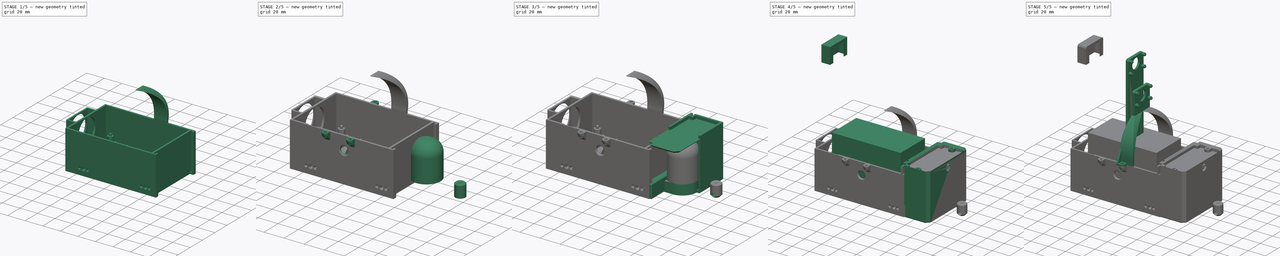
[diagram: build sequence overview — one tinted view per stage of 5, left to right]
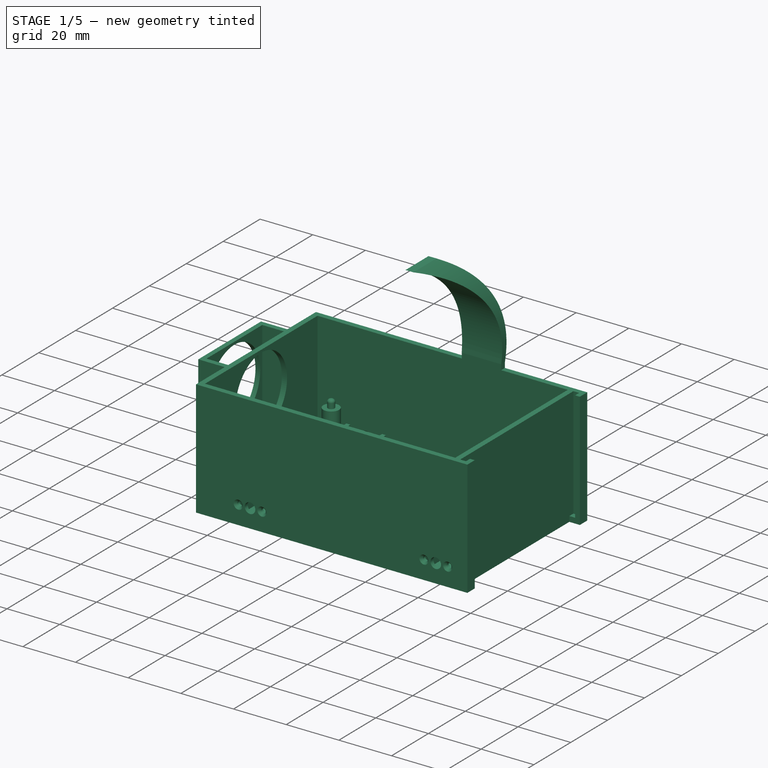
[diagram: stage 1 of 5 — iso view after this stage's code; geometry added in this stage tinted green]
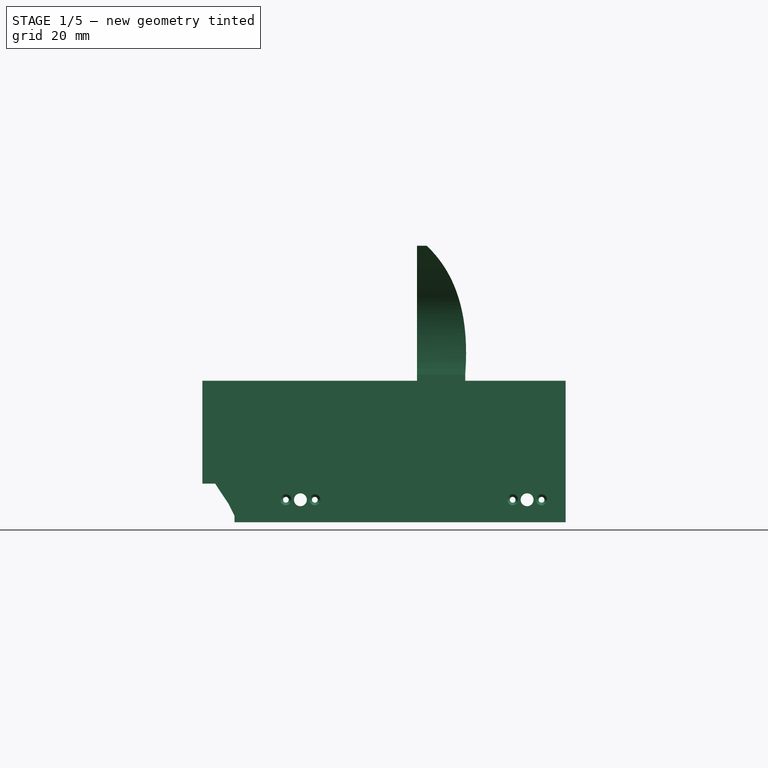
[diagram: stage 1 of 5 — front view after this stage's code; geometry added in this stage tinted green]
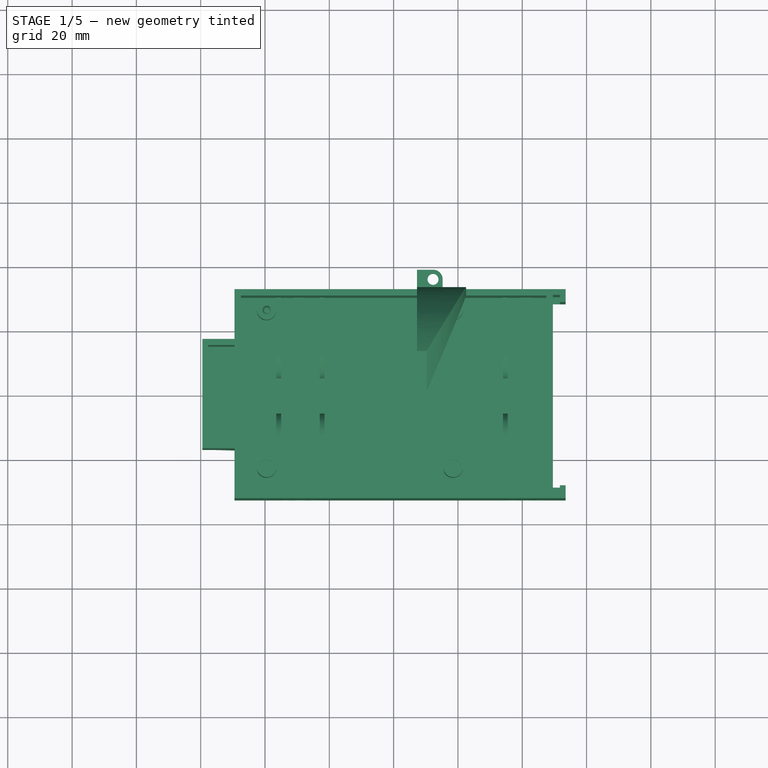
[diagram: stage 1 of 5 — top view after this stage's code; geometry added in this stage tinted green]
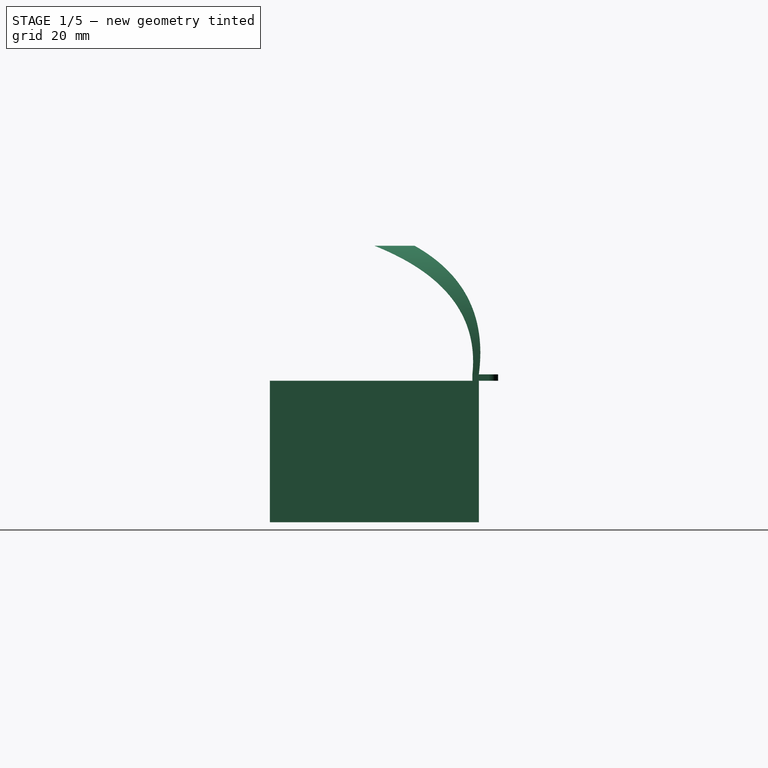
[diagram: stage 1 of 5 — right view after this stage's code; geometry added in this stage tinted green]
FCSTD DOCUMENT  (FreeCAD 2021.717R24301 +3627 (Git))
Label: rpi_chasis
License: All rights reserved
objects: Sketcher::SketchObject×65, PartDesign::Pad×36, PartDesign::Pocket×25, PartDesign::Chamfer×20, PartDesign::Fillet×13, PartDesign::Body×10, Part::SubShapeBinder×9, PartDesign::Mirrored×8, Sketcher::SketchExport×3, PartDesign::Plane×2, PartDesign::AdditiveLoft×2, Spreadsheet::Sheet×1, PartDesign::SubShapeBinder×1, PartDesign::LinearPattern×1, PartDesign::Thickness×1
note: 408 computed .brp shape members not serialized (recipe doc carries the construction recipe); baked Part::Feature solids carry a one-line shape summary decoded from their .brp

FEATURE [PartDesign::Body] Body005  label="MainBoard"
  AutoGroupSolids = false
  ExportMode = 0
  Group = -> [Sketch037,Pad022,Sketch038,Pad023,Sketch039,Pad024,Pad025,Sketch040,Sketch075,Pad041,Sketch086,Pad051,Import024]
  Origin = -> Origin005
  Tip = -> Pad051
  _ExportChildren = -> [Pad022,Pad023,Pad024,Pad025,Pad041,Pad051,Import024]
  _GroupVersion = 1
FEATURE [Part::SubShapeBinder] Import025  label="Import025(Mirrored012)"
  BindCopyOnChange = 0
  BindMode = 0
  ClaimChildren = false
  Context = -> Body006 [Import025.]
  FillStyle = 0
  Fuse = false
  MakeFace = false
  PartialLoad = false
  Relative = true
  Support = -> [Body[Mirrored012.]]
  _Version = 7
FEATURE [Sketcher::SketchObject] Sketch043
  ExternalGeometry = -> [Import025]
  FullyConstrained = true
  MapMode = 5
  Placement = pos=(4e-16,-4e-16,42) rot=(0,0,1;0rad)
  Support = -> [Import025]
  expr: Constraints[1] = <<Params>>.m3_screw_diameter * 1.2
  sketch-geometry (8):
    g0: Circle CenterX=12.25 CenterY=35.5 CenterZ=0 NormalX=0 NormalY=0 NormalZ=1 AngleXU=0 Radius=1.71
    g1: LineSegment StartX=7.25 StartY=38.5 StartZ=0 EndX=7.25 EndY=30.5 EndZ=0
    g2: LineSegment StartX=7.25 StartY=30.5 StartZ=0 EndX=22.25 EndY=30.5 EndZ=0
    g3: LineSegment StartX=22.25 StartY=32.5 StartZ=0 EndX=22.25 EndY=30.5 EndZ=0
    g4: LineSegment StartX=12.25 StartY=38.5 StartZ=0 EndX=7.25 EndY=38.5 EndZ=0
    g5: ArcOfCircle CenterX=12.25 CenterY=35.5 CenterZ=0 NormalX=0 NormalY=0 NormalZ=1 AngleXU=0 Radius=3 StartAngle=0 EndAngle=1.5708
    g6: LineSegment StartX=15.25 StartY=32.5 StartZ=0 EndX=22.25 EndY=32.5 EndZ=0
    g7: LineSegment StartX=15.25 StartY=32.5 StartZ=0 EndX=15.25 EndY=35.5 EndZ=0
  constraints (22):
    c: Coincident(g0,g-3)
    c: Diameter(g0) = 3.42
    c: PointOnObject(g1,g-4)
    c: Vertical(g1)
    c: Coincident(g2,g1)
    c: Horizontal(g2)
    c: Coincident(g3,g2)
    c: Vertical(g3)
    c: Vertical(g4,g0)
    c: Horizontal(g1,g4)
    c: Coincident(g4,g1)
    c: DistanceX(g4,g4) = 5
    c: Coincident(g5,g0)
    c: Coincident(g5,g4)
    c: Horizontal(g5,g0)
    c: Horizontal(g3,g-5)
    c: Coincident(g6,g-5)
    c: Coincident(g6,g3)
    c: Coincident(g7,g6)
    c: Vertical(g7)
    c: Coincident(g5,g7)
    c: DistanceX(g6,g3) = 7
FEATURE [PartDesign::Pad] Pad028
  ClaimChildren = false
  Direction = (1,1,1)
  Fit = 0
  FitJoin = 0
  InnerFit = 0
  InnerFitJoin = 0
  InnerTaperAngle = 0
  InnerTaperAngleRev = 0
  Length = 2
  Length2 = 100
  Linearize = true
  NewSolid = false
  Profile = -> Sketch043
  Suppress = false
  Type = 0
  _ProfileBasedVersion = 1
FEATURE [PartDesign::Body] Body010  label="Weeder"
  AutoGroupSolids = false
  ExportMode = 0
  Group = -> [Sketch091,Pad054,Sketch092,Pad055,Chamfer024,Chamfer025,Mirrored010,Sketch093,Pad056,Sketch094,Pocket028,Sketch095,Pocket029,Sketch096,Pocket030,Import026]
  Origin = -> Origin010
  Tip = -> Pocket030
  _ExportChildren = -> [Pad054,Pad055,Chamfer024,Chamfer025,Mirrored010,Pad056,Pocket028,Pocket029,Pocket030,Import026]
  _GroupVersion = 1
FEATURE [PartDesign::AdditiveLoft] AdditiveLoft
  BaseFeature = -> Pad028
  ClaimChildren = false
  Closed = false
  Fit = 0
  FitJoin = 0
  InnerFit = 0
  InnerFitJoin = 0
  NewSolid = false
  Profile = -> Sketch047
  Ruled = false
  Sections = -> [Sketch046,Sketch045]
  Suppress = false
  _ProfileBasedVersion = 1
FEATURE [PartDesign::Body] Body006  label="CameraArch"
  AutoGroupSolids = false
  ExportMode = 0
  Group = -> [Sketch043,Pad028,DatumPlane,DatumPlane001,Sketch046,Sketch045,Sketch047,Sketch048,Sketch049,AdditiveLoft,AdditiveLoft001,Sketch050,Sketch058,Pad032,Sketch059,Pad033,Sketch060,Pad034,Fillet010,Fillet011,Sketch061,Pocket019,Fillet012,Mirrored005,Import007,Import025]
  Origin = -> Origin006
  Tip = -> Mirrored005
  _ExportChildren = -> [Pad028,DatumPlane,DatumPlane001,AdditiveLoft,AdditiveLoft001,Pad032,Pad033,Pad034,Fillet010,Fillet011,Pocket019,Fillet012,Mirrored005,Import007,Import025]
  _GroupVersion = 1
FEATURE [PartDesign::Body] Body  label="BaseChassis"
  AutoGroupSolids = false
  ExportMode = 0
  Group = -> [Sketch,Export,Export001,Export002,Pad,Pad001,Pad002,Sketch002,Pad003,Sketch003,Pocket001,Fillet,Chamfer,Chamfer001,Sketch005,Pad004,Fillet001,Sketch006,Pocket003,Sketch032,Pad018,Sketch033,Pad019,Mirrored003,Sketch108,Pad061,Sketch109,Pocket037,Sketch110,Pocket038,Chamfer030,Chamfer031,Chamfer032,Chamfer033,Sketch111,Pocket039,Sketch112,Pocket040,Sketch113,Pocket041,Fillet017,Sketch114,Pad062,+5 more]
  Origin = -> Origin
  Tip = -> Mirrored012
  _ExportChildren = -> [Sketch,Pad,Pad001,Pad002,Pad003,Pocket001,Fillet,Chamfer,Chamfer001,Pad004,Fillet001,Pocket003,Pad018,Pad019,Mirrored003,Pad061,Pocket037,Pocket038,Chamfer030,Chamfer031,Chamfer032,Chamfer033,Pocket039,Pocket040,Pocket041,Fillet017,Pad062,Pocket042,Chamfer034,Mirrored,Mirrored012]
  _GroupVersion = 1
FEATURE [Sketcher::SketchObject] Sketch
  Exports = -> [Export,Export001,Export002]
  FullyConstrained = true
  MapMode = 5
  Support = -> [XY_Plane]
  expr: Constraints[10] = <<Params>>.base_length
  expr: Constraints[9] = <<Params>>.base_width
  sketch-geometry (12):
    g0: LineSegment StartX=-47.5 StartY=30.5 StartZ=0 EndX=47.5 EndY=30.5 EndZ=0
    g1: LineSegment StartX=47.5 StartY=30.5 StartZ=0 EndX=47.5 EndY=-30.5 EndZ=0
    g2: LineSegment StartX=47.5 StartY=-30.5 StartZ=0 EndX=-47.5 EndY=-30.5 EndZ=0
    g3: LineSegment StartX=-47.5 StartY=-30.5 StartZ=0 EndX=-47.5 EndY=30.5 EndZ=0
    g4: Circle CenterX=-39.5 CenterY=26.5 CenterZ=0 NormalX=0 NormalY=0 NormalZ=1 AngleXU=0 Radius=3
    g5: Circle CenterX=18.5 CenterY=26.5 CenterZ=0 NormalX=0 NormalY=0 NormalZ=1 AngleXU=0 Radius=3
    g6: Circle CenterX=-39.5 CenterY=-22.5 CenterZ=0 NormalX=0 NormalY=0 NormalZ=1 AngleXU=0 Radius=3
    g7: Circle CenterX=18.5 CenterY=-22.5 CenterZ=0 NormalX=0 NormalY=0 NormalZ=1 AngleXU=0 Radius=3
    g8: LineSegment StartX=-49.5 StartY=32.5 StartZ=0 EndX=49.5 EndY=32.5 EndZ=0
    g9: LineSegment StartX=49.5 StartY=32.5 StartZ=0 EndX=49.5 EndY=-32.5 EndZ=0
    g10: LineSegment StartX=49.5 StartY=-32.5 StartZ=0 EndX=-49.5 EndY=-32.5 EndZ=0
    g11: LineSegment StartX=-49.5 StartY=-32.5 StartZ=0 EndX=-49.5 EndY=32.5 EndZ=0
  constraints (34):
    c: Coincident(g0,g1)
    c: Coincident(g1,g2)
    c: Coincident(g2,g3)
    c: Coincident(g3,g0)
    c: Horizontal(g0)
    c: Horizontal(g2)
    c: Vertical(g1)
    c: Vertical(g3)
    c: Symmetric(g0,g1,g-1)
    c: DistanceY(g3,g3) = 61
    c: DistanceX(g0,g0) = 95
    c: DistanceX(g0,g4) = 8
    c: DistanceY(g4,g0) = 4
    c: Diameter(g4) = 6
    c: DistanceX(g4,g5) = 58
    c: DistanceY(g6,g4) = 49
    c: Equal(g4,g5)
    c: Equal(g5,g7)
    c: Equal(g7,g6)
    c: Horizontal(g5,g4)
    c: Horizontal(g6,g7)
    c: Vertical(g4,g6)
    c: Vertical(g7,g5)
    c: Coincident(g8,g9)
    c: Coincident(g9,g10)
    c: Coincident(g10,g11)
    c: Coincident(g11,g8)
    c: Horizontal(g8)
    c: Horizontal(g10)
    c: Vertical(g9)
    c: Vertical(g11)
    c: Symmetric(g8,g9,g-1)
    c: DistanceX(g1,g9) = 2
    c: DistanceY(g9,g1) = 2
FEATURE [Sketcher::SketchExport] Export
  Base = -> Sketch
  BaseRefs = -> Sketch [edge12,edge9,edge10,edge11]
  Refs = ;g19.edge12 | ;g16.edge9 | ;g17.edge10 | ;g18.edge11
  SyncPlacement = true
FEATURE [Sketcher::SketchExport] Export001
  Base = -> Sketch
  BaseRefs = -> Sketch [edge9,edge1,edge2,edge10,edge11,edge3,edge12,edge4]
  Refs = ;g16.edge9 | ;g1.edge1 | ;g2.edge2 | ;g17.edge10 | ;g18.edge11 | ;g3.edge3 | ;g19.edge12 | ;g4.edge4
  SyncPlacement = true
FEATURE [Sketcher::SketchExport] Export002
  Base = -> Sketch
  BaseRefs = -> Sketch [edge5,edge7,edge8,edge6]
  Refs = ;g5.edge5 | ;g7.edge7 | ;g8.edge8 | ;g6.edge6
  SyncPlacement = true
FEATURE [PartDesign::Pad] Pad
  ClaimChildren = false
  Direction = (1,1,1)
  Fit = 0
  FitJoin = 0
  InnerFit = 0
  InnerFitJoin = 0
  InnerTaperAngle = 0
  InnerTaperAngleRev = 0
  Length = 2
  Length2 = 100
  Linearize = true
  NewSolid = false
  Profile = -> Export
  Reversed = true
  Suppress = false
  Type = 0
  _ProfileBasedVersion = 1
FEATURE [PartDesign::Pad] Pad001
  BaseFeature = -> Pad
  ClaimChildren = false
  Direction = (1,1,1)
  Fit = 0
  FitJoin = 0
  InnerFit = 0
  InnerFitJoin = 0
  InnerTaperAngle = 0
  InnerTaperAngleRev = 0
  Length = 42
  Length2 = 100
  Linearize = true
  NewSolid = false
  Profile = -> Export001
  Suppress = false
  Type = 0
  _ProfileBasedVersion = 1
  expr: Length = <<Params>>.base_height
FEATURE [PartDesign::Pad] Pad002
  BaseFeature = -> Pad001
  ClaimChildren = false
  Direction = (1,1,1)
  Fit = 0
  FitJoin = 0
  InnerFit = 0
  InnerFitJoin = 0
  InnerTaperAngle = 0
  InnerTaperAngleRev = 0
  Length = 14.2
  Length2 = 100
  Linearize = true
  NewSolid = false
  Profile = -> Export002
  Suppress = false
  Type = 0
  _ProfileBasedVersion = 1
FEATURE [Sketcher::SketchObject] Sketch002
  ExternalGeometry = -> [Sketch]
  FullyConstrained = true
  MapMode = 2
  Support = -> [Pad001]
  sketch-geometry (24):
    g0: LineSegment StartX=34 StartY=-5.5 StartZ=0 EndX=35.5 EndY=-5.5 EndZ=0
    g1: LineSegment StartX=35.5 StartY=-5.5 StartZ=0 EndX=35.5 EndY=-30.5 EndZ=0
    g2: LineSegment StartX=35.5 StartY=-30.5 StartZ=0 EndX=34 EndY=-30.5 EndZ=0
    g3: LineSegment StartX=34 StartY=-30.5 StartZ=0 EndX=34 EndY=-5.5 EndZ=0
    g4: LineSegment StartX=34 StartY=30.5 StartZ=0 EndX=35.5 EndY=30.5 EndZ=0
    g5: LineSegment StartX=35.5 StartY=30.5 StartZ=0 EndX=35.5 EndY=5.5 EndZ=0
    g6: LineSegment StartX=35.5 StartY=5.5 StartZ=0 EndX=34 EndY=5.5 EndZ=0
    g7: LineSegment StartX=34 StartY=5.5 StartZ=0 EndX=34 EndY=30.5 EndZ=0
    g8: LineSegment StartX=-36.5 StartY=30.5 StartZ=0 EndX=-35 EndY=30.5 EndZ=0
    g9: LineSegment StartX=-35 StartY=30.5 StartZ=0 EndX=-35 EndY=5.5 EndZ=0
    g10: LineSegment StartX=-35 StartY=5.5 StartZ=0 EndX=-36.5 EndY=5.5 EndZ=0
    g11: LineSegment StartX=-36.5 StartY=5.5 StartZ=0 EndX=-36.5 EndY=30.5 EndZ=0
    g12: LineSegment StartX=-23 StartY=30.5 StartZ=0 EndX=-21.5 EndY=30.5 EndZ=0
    g13: LineSegment StartX=-21.5 StartY=30.5 StartZ=0 EndX=-21.5 EndY=5.5 EndZ=0
    g14: LineSegment StartX=-21.5 StartY=5.5 StartZ=0 EndX=-23 EndY=5.5 EndZ=0
    g15: LineSegment StartX=-23 StartY=5.5 StartZ=0 EndX=-23 EndY=30.5 EndZ=0
    g16: LineSegment StartX=-36.5 StartY=-5.5 StartZ=0 EndX=-35 EndY=-5.5 EndZ=0
    g17: LineSegment StartX=-35 StartY=-5.5 StartZ=0 EndX=-35 EndY=-30.5 EndZ=0
    g18: LineSegment StartX=-35 StartY=-30.5 StartZ=0 EndX=-36.5 EndY=-30.5 EndZ=0
    g19: LineSegment StartX=-36.5 StartY=-30.5 StartZ=0 EndX=-36.5 EndY=-5.5 EndZ=0
    g20: LineSegment StartX=-23 StartY=-5.5 StartZ=0 EndX=-21.5 EndY=-5.5 EndZ=0
    g21: LineSegment StartX=-21.5 StartY=-5.5 StartZ=0 EndX=-21.5 EndY=-30.5 EndZ=0
    g22: LineSegment StartX=-21.5 StartY=-30.5 StartZ=0 EndX=-23 EndY=-30.5 EndZ=0
    g23: LineSegment StartX=-23 StartY=-30.5 StartZ=0 EndX=-23 EndY=-5.5 EndZ=0
  constraints (72):
    c: Coincident(g0,g1)
    c: Coincident(g1,g2)
    c: Coincident(g2,g3)
    c: Coincident(g3,g0)
    c: Horizontal(g0)
    c: Horizontal(g2)
    c: Vertical(g1)
    c: Vertical(g3)
    c: Coincident(g4,g5)
    c: Coincident(g5,g6)
    c: Coincident(g6,g7)
    c: Coincident(g7,g4)
    c: Horizontal(g4)
    c: Horizontal(g6)
    c: Vertical(g5)
    c: Vertical(g7)
    c: DistanceX(g4,g4) = 1.5
    c: DistanceY(g7,g7) = 25
    c: Equal(g7,g3)
    c: Equal(g4,g0)
    c: Vertical(g0,g5)
    c: Coincident(g8,g9)
    c: Coincident(g9,g10)
    c: Coincident(g10,g11)
    c: Coincident(g11,g8)
    c: Horizontal(g8)
    c: Horizontal(g10)
    c: Vertical(g9)
    c: Vertical(g11)
    c: Coincident(g12,g13)
    c: Coincident(g13,g14)
    c: Coincident(g14,g15)
    c: Coincident(g15,g12)
    c: Horizontal(g12)
    c: Horizontal(g14)
    c: Vertical(g13)
    c: Vertical(g15)
    c: Coincident(g16,g17)
    c: Coincident(g17,g18)
    c: Coincident(g18,g19)
    c: Coincident(g19,g16)
    c: Horizontal(g16)
    c: Horizontal(g18)
    c: Vertical(g17)
    c: Vertical(g19)
    c: Coincident(g20,g21)
    c: Coincident(g21,g22)
    c: Coincident(g22,g23)
    c: Coincident(g23,g20)
    c: Horizontal(g20)
    c: Horizontal(g22)
    c: Vertical(g21)
    c: Vertical(g23)
    c: DistanceX(g8,g12) = 12
    c: Horizontal(g8,g12)
    c: Vertical(g16,g10)
    c: Vertical(g20,g14)
    c: Horizontal(g22,g18)
    c: Equal(g10,g14)
    c: Equal(g14,g16)
    c: Equal(g16,g20)
    c: Equal(g20,g0)
    c: Equal(g17,g9)
    c: Equal(g9,g13)
    c: Equal(g13,g21)
    c: Equal(g21,g1)
    c: DistanceX(g-7,g8) = 3
    c: Horizontal(g8,g-4)
    c: Horizontal(g4,g-4)
    c: Horizontal(g2,g18)
    c: Horizontal(g18,g-5)
    c: DistanceX(g4,g-6) = 12
FEATURE [PartDesign::Pad] Pad003
  BaseFeature = -> Pad002
  ClaimChildren = false
  Direction = (1,1,1)
  Fit = 0
  FitJoin = 0
  InnerFit = 0
  InnerFitJoin = 0
  InnerTaperAngle = 0
  InnerTaperAngleRev = 0
  Length = 8
  Length2 = 100
  Linearize = true
  NewSolid = false
  Profile = -> Sketch002
  Suppress = false
  Type = 0
  _ProfileBasedVersion = 1
FEATURE [Sketcher::SketchObject] Sketch003
  ExternalGeometry = -> [Pad003]
  FullyConstrained = true
  MapMode = 5
  Placement = pos=(0,30.5,0) rot=(1,0,0;1.5708rad)
  Support = -> [Pad003]
  sketch-geometry (6):
    g0: Circle CenterX=-29 CenterY=5 CenterZ=0 NormalX=0 NormalY=0 NormalZ=1 AngleXU=0 Radius=2
    g1: Circle CenterX=-33.5 CenterY=5 CenterZ=0 NormalX=0 NormalY=0 NormalZ=1 AngleXU=0 Radius=0.9
    g2: Circle CenterX=-24.5 CenterY=5 CenterZ=0 NormalX=0 NormalY=0 NormalZ=1 AngleXU=0 Radius=0.9
    g3: Circle CenterX=41.5 CenterY=5 CenterZ=0 NormalX=0 NormalY=0 NormalZ=1 AngleXU=0 Radius=2
    g4: Circle CenterX=37 CenterY=5 CenterZ=0 NormalX=0 NormalY=0 NormalZ=1 AngleXU=0 Radius=0.9
    g5: Circle CenterX=46 CenterY=5 CenterZ=0 NormalX=0 NormalY=0 NormalZ=1 AngleXU=0 Radius=0.9
  constraints (18):
    c: Diameter(g0) = 4
    c: Diameter(g1) = 1.8
    c: Equal(g1,g2)
    c: Horizontal(g1,g0)
    c: Horizontal(g0,g2)
    c: DistanceY(g-3,g0) = 5
    c: DistanceX(g0,g2) = 4.5
    c: DistanceX(g1,g0) = 4.5
    c: DistanceX(g-3,g0) = 6
    c: Horizontal(g4,g3)
    c: Horizontal(g3,g5)
    c: Horizontal(g5,g0)
    c: DistanceX(g3,g5) = 4.5
    c: DistanceX(g4,g3) = 4.5
    c: Equal(g4,g5)
    c: Equal(g5,g2)
    c: Equal(g3,g0)
    c: DistanceX(g-4,g3) = 6
FEATURE [PartDesign::Pocket] Pocket001
  BaseFeature = -> Pad003
  ClaimChildren = false
  Fit = 0
  FitJoin = 0
  InnerFit = 0
  InnerFitJoin = 0
  InnerTaperAngle = 0
  InnerTaperAngleRev = 0
  Length = 5
  Length2 = 100
  Linearize = true
  NewSolid = false
  Profile = -> Sketch003
  Suppress = false
  Type = 4
  _ProfileBasedVersion = 1
FEATURE [PartDesign::Fillet] Fillet
  Base = -> Pocket001 [Edge145,Edge127,Edge130,Edge120,Edge142,Edge135]
  BaseFeature = -> Pocket001
  NewSolid = false
  Radius = 7
  SupportTransform = false
  Suppress = false
FEATURE [PartDesign::Chamfer] Chamfer
  Angle = 45
  Base = -> Fillet [Edge27,Edge30,Edge112,Edge115]
  BaseFeature = -> Fillet
  ChamferType = 0
  FlipDirection = false
  NewSolid = false
  Size = 0.4
  Size2 = 1
  SupportTransform = false
  Suppress = false
FEATURE [PartDesign::Chamfer] Chamfer001
  Angle = 45
  Base = -> Chamfer [Edge161,Edge159,Edge158,Edge156,Edge86,Edge88,Edge92,Edge90]
  BaseFeature = -> Chamfer
  ChamferType = 0
  FlipDirection = false
  NewSolid = false
  Size = 0.8
  Size2 = 1
  SupportTransform = false
  Suppress = false
FEATURE [Sketcher::SketchObject] Sketch005
  ExternalGeometry = -> [Chamfer001]
  FullyConstrained = true
  MapMode = 5
  Placement = pos=(0,0,14.2) rot=(0,0,1;0rad)
  Support = -> [Chamfer001]
  sketch-geometry (2):
    g0: Circle CenterX=-39.5 CenterY=26.5 CenterZ=0 NormalX=0 NormalY=0 NormalZ=1 AngleXU=0 Radius=1.25
    g1: Circle CenterX=18.5 CenterY=26.5 CenterZ=0 NormalX=0 NormalY=0 NormalZ=1 AngleXU=0 Radius=1.25
  constraints (4):
    c: Coincident(g0,g-3)
    c: Coincident(g1,g-4)
    c: Diameter(g0) = 2.5
    c: Equal(g0,g1)
FEATURE [PartDesign::Pad] Pad004
  BaseFeature = -> Chamfer001
  ClaimChildren = false
  Direction = (1,1,1)
  Fit = 0
  FitJoin = 0
  InnerFit = 0
  InnerFitJoin = 0
  InnerTaperAngle = 0
  InnerTaperAngleRev = 0
  Length = 3
  Length2 = 100
  Linearize = true
  NewSolid = false
  Profile = -> Sketch005
  Suppress = false
  Type = 0
  _ProfileBasedVersion = 1
FEATURE [PartDesign::Fillet] Fillet001
  Base = -> Pad004 [Edge204,Edge206]
  BaseFeature = -> Pad004
  NewSolid = false
  Radius = 1
  SupportTransform = false
  Suppress = false
FEATURE [Sketcher::SketchObject] Sketch006
  ExternalGeometry = -> [Fillet001]
  FullyConstrained = true
  MapMode = 5
  Placement = pos=(0,0,14.2) rot=(0,0,1;0rad)
  Support = -> [Fillet001]
  sketch-geometry (2):
    g0: Circle CenterX=-39.5 CenterY=-22.5 CenterZ=0 NormalX=0 NormalY=0 NormalZ=1 AngleXU=0 Radius=2.4
    g1: Circle CenterX=18.5 CenterY=-22.5 CenterZ=0 NormalX=0 NormalY=0 NormalZ=1 AngleXU=0 Radius=2.4
  constraints (4):
    c: Coincident(g0,g-3)
    c: Coincident(g1,g-4)
    c: Diameter(g1) = 4.8
    c: Equal(g1,g0)
FEATURE [PartDesign::Pocket] Pocket003
  BaseFeature = -> Fillet001
  ClaimChildren = false
  Fit = 0
  FitJoin = 0
  InnerFit = 0
  InnerFitJoin = 0
  InnerTaperAngle = 0
  InnerTaperAngleRev = 0
  Length = 1.8
  Length2 = 100
  Linearize = true
  NewSolid = false
  Profile = -> Sketch006
  Suppress = false
  Type = 0
  _ProfileBasedVersion = 1
FEATURE [Sketcher::SketchObject] Sketch032
  ExternalGeometry = -> [Pocket003]
  FullyConstrained = true
  MapMode = 5
  Placement = pos=(0,0,-2) rot=(1,0,0;3.14159rad)
  Support = -> [Pocket003]
  expr: Constraints[10] = <<Params>>.wall_width * 2
  expr: Constraints[9] = <<Params>>.wall_width * 2
  sketch-geometry (4):
    g0: LineSegment StartX=49.5 StartY=-32.5 StartZ=0 EndX=53.5 EndY=-32.5 EndZ=0
    g1: LineSegment StartX=53.5 StartY=-32.5 StartZ=0 EndX=53.5 EndY=-28.5 EndZ=0
    g2: LineSegment StartX=53.5 StartY=-28.5 StartZ=0 EndX=49.5 EndY=-28.5 EndZ=0
    g3: LineSegment StartX=49.5 StartY=-28.5 StartZ=0 EndX=49.5 EndY=-32.5 EndZ=0
  constraints (11):
    c: Coincident(g0,g1)
    c: Coincident(g1,g2)
    c: Coincident(g2,g3)
    c: Coincident(g3,g0)
    c: Horizontal(g0)
    c: Horizontal(g2)
    c: Vertical(g1)
    c: Vertical(g3)
    c: Coincident(g0,g-3)
    c: DistanceX(g2,g2) = 4
    c: DistanceY(g1,g1) = 4
FEATURE [PartDesign::Pad] Pad018
  BaseFeature = -> Pocket003
  ClaimChildren = false
  Direction = (1,1,1)
  Fit = 0
  FitJoin = 0
  InnerFit = 0
  InnerFitJoin = 0
  InnerTaperAngle = 0
  InnerTaperAngleRev = 0
  Length = 2
  Length2 = 100
  Linearize = true
  NewSolid = false
  Profile = -> Sketch032
  Reversed = true
  Suppress = false
  Type = 0
  _ProfileBasedVersion = 1
  expr: Length = <<Params>>.wall_width
FEATURE [Sketcher::SketchObject] Sketch033
  ExternalGeometry = -> [Pad018]
  FullyConstrained = true
  MapMode = 5
  Support = -> [Pad018]
  expr: Constraints[3] = <<Params>>.wall_width - <<Params>>.fit_gap
  expr: Constraints[4] = <<Params>>.wall_width - <<Params>>.fit_gap
  sketch-geometry (6):
    g0: LineSegment StartX=53.5 StartY=28.5 StartZ=0 EndX=51.7 EndY=28.5 EndZ=0
    g1: LineSegment StartX=51.7 StartY=28.5 StartZ=0 EndX=51.7 EndY=30.7 EndZ=0
    g2: LineSegment StartX=51.7 StartY=30.7 StartZ=0 EndX=49.5 EndY=30.7 EndZ=0
    g3: LineSegment StartX=49.5 StartY=30.7 StartZ=0 EndX=49.5 EndY=32.5 EndZ=0
    g4: LineSegment StartX=49.5 StartY=32.5 StartZ=0 EndX=53.5 EndY=32.5 EndZ=0
    g5: LineSegment StartX=53.5 StartY=32.5 StartZ=0 EndX=53.5 EndY=28.5 EndZ=0
  constraints (15):
    c: Horizontal(g0)
    c: Vertical(g1)
    c: Coincident(g1,g2)
    c: DistanceX(g0,g0) = 1.8
    c: DistanceY(g3,g3) = 1.8
    c: Horizontal(g2)
    c: Vertical(g3)
    c: Coincident(g4,g-4)
    c: Coincident(g4,g5)
    c: Coincident(g4,g-3)
    c: Coincident(g3,g4)
    c: Coincident(g2,g3)
    c: Coincident(g1,g0)
    c: Coincident(g0,g5)
    c: Coincident(g-4,g0)
FEATURE [PartDesign::Pad] Pad019
  BaseFeature = -> Pad018
  ClaimChildren = false
  Direction = (1,1,1)
  Fit = 0
  FitJoin = 0
  InnerFit = 0
  InnerFitJoin = 0
  InnerTaperAngle = 0
  InnerTaperAngleRev = 0
  Length = 42
  Length2 = 100
  Linearize = true
  NewSolid = false
  Profile = -> Sketch033
  Suppress = false
  Type = 0
  _ProfileBasedVersion = 1
  expr: Length = <<Params>>.base_height
FEATURE [PartDesign::Mirrored] Mirrored003
  BaseFeature = -> Pad019
  CopyShape = false
  MirrorPlane = -> XZ_Plane
  NewSolid = false
  OriginalSubs = -> [Pad019,Pad018]
  Originals = -> [Pad019,Pad018]
  ParallelTransform = true
  SubTransform = true
  Suppress = false
FEATURE [Sketcher::SketchObject] Sketch108
  AttachmentOffset = pos=(0,0,-12) rot=(0,0,1;0rad)
  ExternalGeometry = -> [Sketch]
  FullyConstrained = true
  MapMode = 5
  Placement = pos=(1e-16,-1e-16,10) rot=(1,0,0;3.14159rad)
  sketch-geometry (5):
    g0: LineSegment StartX=-59.5 StartY=17 StartZ=0 EndX=-47.5 EndY=17 EndZ=0
    g1: LineSegment StartX=-47.5 StartY=17 StartZ=0 EndX=-47.5 EndY=-17 EndZ=0
    g2: LineSegment StartX=-47.5 StartY=-17 StartZ=0 EndX=-59.5 EndY=-17 EndZ=0
    g3: LineSegment StartX=-59.5 StartY=-17 StartZ=0 EndX=-59.5 EndY=17 EndZ=0
    g4: GeomPoint [constr] X=-47.5 Y=1.3e-15 Z=0
  constraints (12):
    c: Coincident(g0,g1)
    c: Coincident(g1,g2)
    c: Coincident(g2,g3)
    c: Coincident(g3,g0)
    c: Horizontal(g0)
    c: Horizontal(g2)
    c: Vertical(g1)
    c: Vertical(g3)
    c: Symmetric(g-3,g-3,g4)
    c: Symmetric(g0,g1,g4)
    c: DistanceX(g0,g0) = 12
    c: DistanceY(g3,g3) = 34
FEATURE [PartDesign::Pad] Pad061
  BaseFeature = -> Mirrored003
  ClaimChildren = false
  Direction = (1,1,1)
  Fit = 0
  FitJoin = 0
  InnerFit = 0
  InnerFitJoin = 0
  InnerTaperAngle = 0
  InnerTaperAngleRev = 0
  Length = 32
  Length2 = 100
  Linearize = true
  NewSolid = false
  Profile = -> Sketch108
  Refine = true
  Reversed = true
  Suppress = false
  Type = 0
  _ProfileBasedVersion = 1
FEATURE [Sketcher::SketchObject] Sketch109
  ExternalGeometry = -> [Pad061]
  FullyConstrained = true
  MapMode = 5
  Placement = pos=(4e-16,-8e-16,42) rot=(0,0,1;0rad)
  Support = -> [Pad061]
  sketch-geometry (6):
    g0: GeomPoint [constr] X=-53.6 Y=-1e-16 Z=0
    g1: LineSegment StartX=-57.7 StartY=15.1 StartZ=0 EndX=-49.5 EndY=15.1 EndZ=0
    g2: LineSegment StartX=-49.5 StartY=15.1 StartZ=0 EndX=-49.5 EndY=-15.1 EndZ=0
    g3: LineSegment StartX=-49.5 StartY=-15.1 StartZ=0 EndX=-57.7 EndY=-15.1 EndZ=0
    g4: LineSegment StartX=-57.7 StartY=-15.1 StartZ=0 EndX=-57.7 EndY=15.1 EndZ=0
    g5: GeomPoint [constr] X=-49.5 Y=7e-16 Z=0
  constraints (13):
    c: Coincident(g1,g2)
    c: Coincident(g2,g3)
    c: Coincident(g3,g4)
    c: Coincident(g4,g1)
    c: Horizontal(g1)
    c: Horizontal(g3)
    c: Vertical(g2)
    c: Vertical(g4)
    c: Symmetric(g1,g3,g0)
    c: DistanceX(g1,g1) = 8.2
    c: DistanceY(g2,g2) = 30.2
    c: Symmetric(g-3,g-4,g5)
    c: Symmetric(g1,g2,g5)
FEATURE [PartDesign::Pocket] Pocket037
  BaseFeature = -> Pad061
  ClaimChildren = false
  Fit = 0
  FitJoin = 0
  InnerFit = 0
  InnerFitJoin = 0
  InnerTaperAngle = 0
  InnerTaperAngleRev = 0
  Length = 30
  Length2 = 100
  Linearize = true
  NewSolid = false
  Profile = -> Sketch109
  Suppress = false
  Type = 0
  _ProfileBasedVersion = 1
FEATURE [Sketcher::SketchObject] Sketch110
  ExternalGeometry = -> [Pocket037]
  FullyConstrained = true
  MapMode = 5
  Placement = pos=(-59.5,0,6e-16) rot=(0.57735,-0.57735,-0.57735;2.0944rad)
  Support = -> [Pocket037]
  sketch-geometry (1):
    g0: Circle CenterX=2.9e-15 CenterY=27 CenterZ=0 NormalX=0 NormalY=0 NormalZ=1 AngleXU=0 Radius=14
  constraints (2):
    c: Symmetric(g-3,g-4,g0)
    c: Diameter(g0) = 28
FEATURE [PartDesign::Pocket] Pocket038
  BaseFeature = -> Pocket037
  ClaimChildren = false
  Fit = 0
  FitJoin = 0
  InnerFit = 0
  InnerFitJoin = 0
  InnerTaperAngle = 0
  InnerTaperAngleRev = 0
  Length = 0
  Length2 = 100
  Linearize = true
  NewSolid = false
  Profile = -> Sketch110
  Suppress = false
  Type = 3
  UpToFace = -> Pocket037 [Face18]
  _ProfileBasedVersion = 1
FEATURE [PartDesign::Chamfer] Chamfer030
  Angle = 45
  Base = -> Pocket038 [Edge6]
  BaseFeature = -> Pocket038
  ChamferType = 1
  FlipDirection = false
  NewSolid = false
  Size = 4.99
  Size2 = 9.99
  SupportTransform = false
  Suppress = false
FEATURE [PartDesign::Chamfer] Chamfer031
  Angle = 45
  Base = -> Chamfer030 [Edge7]
  BaseFeature = -> Chamfer030
  ChamferType = 1
  FlipDirection = false
  NewSolid = false
  Size = 1
  Size2 = 7
  SupportTransform = false
  Suppress = false
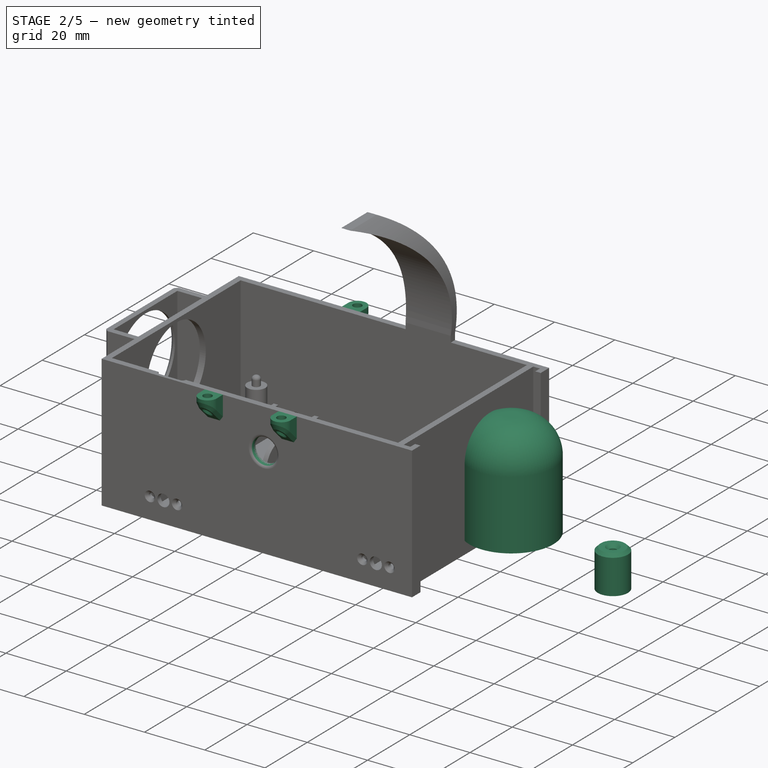
[diagram: stage 2 of 5 — iso view after this stage's code; geometry added in this stage tinted green]
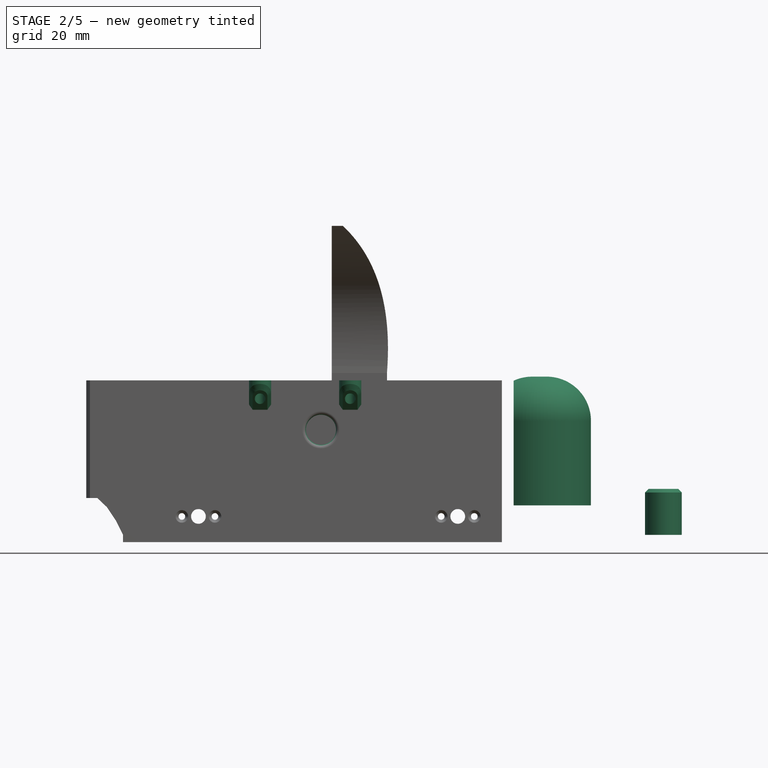
[diagram: stage 2 of 5 — front view after this stage's code; geometry added in this stage tinted green]
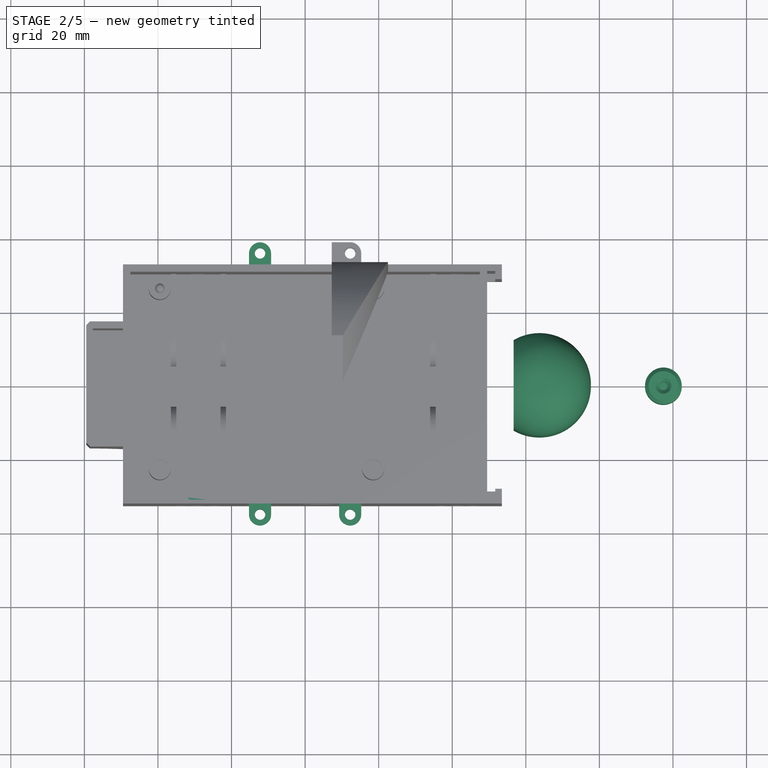
[diagram: stage 2 of 5 — top view after this stage's code; geometry added in this stage tinted green]
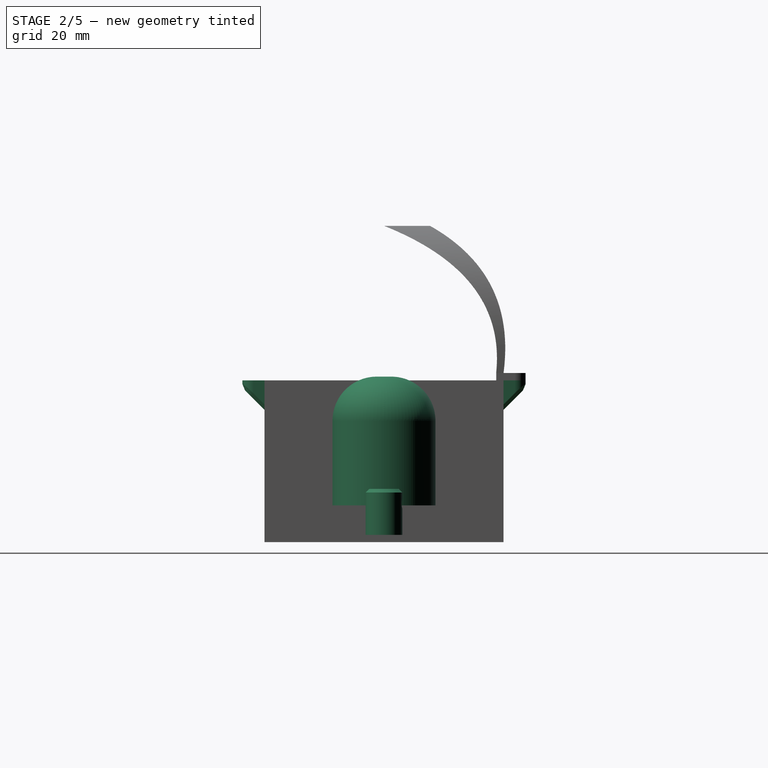
[diagram: stage 2 of 5 — right view after this stage's code; geometry added in this stage tinted green]
FEATURE [PartDesign::Body] Body009  label="WaterTankLid"
  AutoGroupSolids = false
  ExportMode = 0
  Group = -> [Sketch090,Import018,Pad053,Chamfer023]
  Origin = -> Origin009
  Placement = pos=(0,0,5) rot=(0,0,1;0rad)
  Tip = -> Chamfer023
  _ExportChildren = -> [Import018,Pad053,Chamfer023]
  _GroupVersion = 1
FEATURE [Sketcher::SketchObject] Sketch097
  FullyConstrained = false
  MapMode = 5
  Support = -> [XY_Plane011]
  sketch-geometry (1):
    g0: Circle CenterX=97.3974 CenterY=0 CenterZ=0 NormalX=0 NormalY=0 NormalZ=1 AngleXU=0 Radius=5
  constraints (2):
    c: PointOnObject(g0,g-1)
    c: Diameter(g0) = 10
FEATURE [PartDesign::Pad] Pad057
  ClaimChildren = false
  Direction = (1,1,1)
  Fit = 0
  FitJoin = 0
  InnerFit = 0
  InnerFitJoin = 0
  InnerTaperAngle = 0
  InnerTaperAngleRev = 0
  Length = 12.5
  Length2 = 100
  Linearize = true
  NewSolid = false
  Profile = -> Sketch097
  Suppress = false
  Type = 0
  _ProfileBasedVersion = 1
FEATURE [Sketcher::SketchObject] Sketch098
  ExternalGeometry = -> [Pad057]
  FullyConstrained = true
  MapMode = 5
  Placement = pos=(0,0,12.5) rot=(0,0,1;0rad)
  Support = -> [Pad057]
  sketch-geometry (1):
    g0: Circle CenterX=97.3974 CenterY=0 CenterZ=0 NormalX=0 NormalY=0 NormalZ=1 AngleXU=0 Radius=1.15
  constraints (2):
    c: Coincident(g0,g-3)
    c: Diameter(g0) = 2.3
FEATURE [PartDesign::Pocket] Pocket031
  BaseFeature = -> Pad057
  ClaimChildren = false
  Fit = 0
  FitJoin = 0
  InnerFit = 0
  InnerFitJoin = 0
  InnerTaperAngle = 0
  InnerTaperAngleRev = 0
  Length = 8
  Length2 = 100
  Linearize = true
  NewSolid = false
  Profile = -> Sketch098
  Suppress = false
  Type = 0
  _ProfileBasedVersion = 1
FEATURE [Sketcher::SketchObject] Sketch099
  ExternalGeometry = -> [Pocket031]
  FullyConstrained = true
  MapMode = 5
  Placement = pos=(0,0,0) rot=(1,0,0;1.5708rad)
  Support = -> [XZ_Plane011]
  expr: Constraints[1] = <<Params>>.m3_screw_diameter
  sketch-geometry (1):
    g0: Circle CenterX=97.3974 CenterY=8.5 CenterZ=0 NormalX=0 NormalY=0 NormalZ=1 AngleXU=0 Radius=1.425
  constraints (2):
    c: Symmetric(g-3,g-4,g0)
    c: Diameter(g0) = 2.85
FEATURE [PartDesign::Pocket] Pocket032
  BaseFeature = -> Pocket031
  ClaimChildren = false
  Fit = 0
  FitJoin = 0
  InnerFit = 0
  InnerFitJoin = 0
  InnerTaperAngle = 0
  InnerTaperAngleRev = 0
  Length = 5
  Length2 = 100
  Linearize = true
  NewSolid = false
  Profile = -> Sketch099
  Suppress = false
  Type = 1
  _ProfileBasedVersion = 1
FEATURE [PartDesign::Chamfer] Chamfer026
  Angle = 45
  Base = -> Pocket032 [Edge5,Edge3]
  BaseFeature = -> Pocket032
  ChamferType = 0
  FlipDirection = false
  NewSolid = false
  Size = 1
  Size2 = 1
  SupportTransform = false
  Suppress = false
FEATURE [PartDesign::Body] Body011  label="WeederEnd"
  AutoGroupSolids = false
  ExportMode = 0
  Group = -> [Sketch097,Pad057,Sketch098,Pocket031,Sketch099,Pocket032,Chamfer026,Chamfer027,Sketch100,Pocket033,Sketch101,Pocket034,Sketch102,Pad058,Chamfer028,LinearPattern,Chamfer029]
  Origin = -> Origin011
  Tip = -> Chamfer029
  _ExportChildren = -> [Pad057,Pocket031,Pocket032,Chamfer026,Chamfer027,Pocket033,Pocket034,Pad058,Chamfer028,LinearPattern,Chamfer029]
  _GroupVersion = 1
FEATURE [Part::SubShapeBinder] Import021  label="Import021(Pocket030)"
  BindCopyOnChange = 0
  BindMode = 0
  ClaimChildren = false
  Context = -> Body012 [Import021.]
  FillStyle = 0
  Fuse = false
  MakeFace = false
  PartialLoad = false
  Relative = true
  Support = -> [Body010[Pocket030.]]
  _Version = 7
FEATURE [Sketcher::SketchObject] Sketch104
  ExternalGeometry = -> [Import021]
  FullyConstrained = true
  MapMode = 5
  Placement = pos=(-1.1e-15,-1.8e-15,8) rot=(0,0,1;0rad)
  Support = -> [Import021]
  sketch-geometry (1):
    g0: Circle CenterX=63.7 CenterY=0 CenterZ=0 NormalX=0 NormalY=0 NormalZ=1 AngleXU=0 Radius=14
  constraints (2):
    c: Coincident(g0,g-3)
    c: Equal(g0,g-3)
FEATURE [PartDesign::Pad] Pad059
  ClaimChildren = false
  Direction = (1,1,1)
  Fit = 0
  FitJoin = 0
  InnerFit = 0
  InnerFitJoin = 0
  InnerTaperAngle = 0
  InnerTaperAngleRev = 0
  Length = 35
  Length2 = 100
  Linearize = true
  NewSolid = false
  Profile = -> Sketch104
  Suppress = false
  Type = 0
  _ProfileBasedVersion = 1
FEATURE [PartDesign::Thickness] Thickness
  Base = -> Pad059 [Face2]
  BaseFeature = -> Pad059
  Intersection = false
  Join = 0
  Mode = 0
  NewSolid = false
  Reversed = true
  SupportTransform = false
  Suppress = false
  Value = 1.2
FEATURE [PartDesign::Fillet] Fillet016
  Base = -> Thickness [Edge6,Edge3]
  BaseFeature = -> Thickness
  NewSolid = false
  Radius = 12
  SupportTransform = false
  Suppress = false
FEATURE [Sketcher::SketchObject] Sketch105
  ExternalGeometry = -> [Import021]
  FullyConstrained = false
  MapMode = 5
  Placement = pos=(-1.1e-15,-1.8e-15,8) rot=(0,0,1;0rad)
  Support = -> [Import021]
  sketch-geometry (4):
    g0: LineSegment StartX=55.7 StartY=13.9052 StartZ=0 EndX=46.0731 EndY=13.9052 EndZ=0
    g1: LineSegment StartX=46.0731 StartY=13.9052 StartZ=0 EndX=46.0731 EndY=-13.8997 EndZ=0
    g2: LineSegment StartX=46.0731 StartY=-13.8997 StartZ=0 EndX=55.7 EndY=-13.8997 EndZ=0
    g3: LineSegment StartX=55.7 StartY=-13.8997 StartZ=0 EndX=55.7 EndY=13.9052 EndZ=0
  constraints (9):
    c: Coincident(g0,g1)
    c: Coincident(g1,g2)
    c: Coincident(g2,g3)
    c: Coincident(g3,g0)
    c: Horizontal(g0)
    c: Horizontal(g2)
    c: Vertical(g1)
    c: Vertical(g3)
    c: PointOnObject(g0,g-3)
FEATURE [PartDesign::Pocket] Pocket036
  BaseFeature = -> Fillet016
  ClaimChildren = false
  Fit = 1
  FitJoin = 0
  InnerFit = 0
  InnerFitJoin = 0
  InnerTaperAngle = 0
  InnerTaperAngleRev = 0
  Length = 5
  Length2 = 100
  Linearize = true
  NewSolid = false
  Profile = -> Sketch105
  Reversed = true
  Suppress = false
  Type = 1
  _ProfileBasedVersion = 1
FEATURE [Sketcher::SketchObject] Sketch106
  ExternalGeometry = -> [Import021]
  FullyConstrained = false
  MapMode = 5
  Placement = pos=(-1.1e-15,-1.8e-15,8) rot=(0,0,1;0rad)
  Support = -> [Import021]
  sketch-geometry (4):
    g0: ArcOfCircle CenterX=63.7 CenterY=0 CenterZ=0 NormalX=0 NormalY=0 NormalZ=1 AngleXU=0 Radius=12 StartAngle=1.88462 EndAngle=2.11064
    g1: ArcOfCircle CenterX=63.7 CenterY=0 CenterZ=0 NormalX=0 NormalY=0 NormalZ=1 AngleXU=0 Radius=13.0142 StartAngle=1.88354 EndAngle=2.11582
    g2: LineSegment StartX=59.9956 StartY=11.4139 StartZ=0 EndX=59.6959 EndY=12.3829 EndZ=0
    g3: LineSegment StartX=57.532 StartY=10.2935 StartZ=0 EndX=56.953 EndY=11.1286 EndZ=0
  constraints (7):
    c: Coincident(g0,g-3)
    c: PointOnObject(g0,g-3)
    c: Coincident(g1,g0)
    c: Coincident(g2,g0)
    c: Coincident(g2,g1)
    c: Coincident(g3,g0)
    c: Coincident(g3,g1)
FEATURE [PartDesign::Pad] Pad060
  BaseFeature = -> Pocket036
  ClaimChildren = false
  Direction = (1,1,1)
  Fit = 0
  FitJoin = 0
  InnerFit = 0
  InnerFitJoin = 0
  InnerTaperAngle = 0
  InnerTaperAngleRev = 0
  Length = 10
  Length2 = 100
  Linearize = true
  NewSolid = false
  Profile = -> Sketch106
  Suppress = false
  Type = 0
  _ProfileBasedVersion = 1
FEATURE [PartDesign::Mirrored] Mirrored011
  BaseFeature = -> Pad060
  CopyShape = false
  MirrorPlane = -> XZ_Plane012
  NewSolid = false
  OriginalSubs = -> [Pad060]
  Originals = -> [Pad060]
  ParallelTransform = true
  SubTransform = true
  Suppress = false
FEATURE [PartDesign::Chamfer] Chamfer032
  Angle = 45
  Base = -> Chamfer031 [Edge8]
  BaseFeature = -> Chamfer031
  ChamferType = 1
  FlipDirection = false
  NewSolid = false
  Size = 1
  Size2 = 3
  SupportTransform = false
  Suppress = false
FEATURE [PartDesign::Chamfer] Chamfer033
  Angle = 45
  Base = -> Chamfer032 [Edge15,Edge3,Edge16]
  BaseFeature = -> Chamfer032
  ChamferType = 0
  FlipDirection = false
  NewSolid = false
  Size = 1
  Size2 = 1
  SupportTransform = false
  Suppress = false
FEATURE [Sketcher::SketchObject] Sketch111
  AttachmentOffset = pos=(0,0,23) rot=(0,0,1;0rad)
  ExternalGeometry = -> [Chamfer033]
  FullyConstrained = true
  MapMode = 5
  Placement = pos=(0,0,23) rot=(0,0,1;0rad)
  Support = -> [Chamfer033]
  sketch-geometry (4):
    g0: LineSegment StartX=-30.99 StartY=-30.18 StartZ=0 EndX=-23.99 EndY=-30.18 EndZ=0
    g1: LineSegment StartX=-23.99 StartY=-30.18 StartZ=0 EndX=-23.99 EndY=-30.5 EndZ=0
    g2: LineSegment StartX=-23.99 StartY=-30.5 StartZ=0 EndX=-30.99 EndY=-30.5 EndZ=0
    g3: LineSegment StartX=-30.99 StartY=-30.5 StartZ=0 EndX=-30.99 EndY=-30.18 EndZ=0
  constraints (12):
    c: Coincident(g0,g1)
    c: Coincident(g1,g2)
    c: Coincident(g2,g3)
    c: Coincident(g3,g0)
    c: Horizontal(g0)
    c: Horizontal(g2)
    c: Vertical(g1)
    c: Vertical(g3)
    c: PointOnObject(g1,g-3)
    c: DistanceX(g-4,g0) = 8.51
    c: DistanceX(g0,g0) = 7
    c: DistanceY(g1,g1) = 0.32
FEATURE [PartDesign::Pocket] Pocket039  label="SwitchPocket"
  BaseFeature = -> Chamfer033
  ClaimChildren = false
  Fit = 1
  FitJoin = 0
  InnerFit = 0
  InnerFitJoin = 0
  InnerTaperAngle = 0
  InnerTaperAngleRev = 0
  Length = 5
  Length2 = 100
  Linearize = true
  NewSolid = false
  Profile = -> Sketch111
  Reversed = true
  Suppress = false
  Type = 1
  _ProfileBasedVersion = 1
FEATURE [Sketcher::SketchObject] Sketch112
  ExternalGeometry = -> [Pocket039]
  FullyConstrained = true
  MapMode = 5
  Placement = pos=(-49.5,0,0) rot=(0.57735,-0.57735,-0.57735;2.0944rad)
  Support = -> [Pocket039]
  sketch-geometry (4):
    g0: LineSegment StartX=28 StartY=30 StartZ=0 EndX=30.5 EndY=30 EndZ=0
    g1: LineSegment StartX=30.5 StartY=30 StartZ=0 EndX=30.5 EndY=26 EndZ=0
    g2: LineSegment StartX=30.5 StartY=26 StartZ=0 EndX=28 EndY=26 EndZ=0
    g3: LineSegment StartX=28 StartY=26 StartZ=0 EndX=28 EndY=30 EndZ=0
  constraints (12):
    c: Coincident(g0,g1)
    c: Coincident(g1,g2)
    c: Coincident(g2,g3)
    c: Coincident(g3,g0)
    c: Horizontal(g0)
    c: Horizontal(g2)
    c: Vertical(g1)
    c: Vertical(g3)
    c: DistanceX(g0,g0) = 2.5
    c: DistanceY(g1,g1) = 4
    c: DistanceX(g1,g-3) = 2
    c: DistanceY(g-3,g1) = 28
FEATURE [PartDesign::Pocket] Pocket040
  BaseFeature = -> Pocket039
  ClaimChildren = false
  Fit = 0
  FitJoin = 0
  InnerFit = 0
  InnerFitJoin = 0
  InnerTaperAngle = 0
  InnerTaperAngleRev = 0
  Length = 5
  Length2 = 100
  Linearize = true
  NewSolid = false
  Profile = -> Sketch112
  Suppress = false
  Type = 0
  _ProfileBasedVersion = 1
FEATURE [Sketcher::SketchObject] Sketch113
  ExternalGeometry = -> [Pocket040]
  FullyConstrained = true
  MapMode = 5
  Placement = pos=(-1.3e-15,-32.5,-2.6e-15) rot=(1,0,0;1.5708rad)
  Support = -> [Pocket040]
  sketch-geometry (2):
    g0: Circle CenterX=4.3 CenterY=28.55 CenterZ=0 NormalX=0 NormalY=0 NormalZ=1 AngleXU=0 Radius=2.1
    g1: GeomPoint [constr] X=-39.5 Y=14.2 Z=0
  constraints (4):
    c: Symmetric(g-3,g-3,g1)
    c: DistanceY(g1,g0) = 14.35
    c: DistanceX(g1,g0) = 43.8
    c: Diameter(g0) = 4.2
FEATURE [PartDesign::Pocket] Pocket041
  BaseFeature = -> Pocket040
  ClaimChildren = false
  Fit = 2
  FitJoin = 0
  InnerFit = 0
  InnerFitJoin = 0
  InnerTaperAngle = 0
  InnerTaperAngleRev = 0
  Length = 5
  Length2 = 100
  Linearize = true
  NewSolid = false
  Profile = -> Sketch113
  Suppress = false
  Type = 0
  _ProfileBasedVersion = 1
FEATURE [PartDesign::Fillet] Fillet017
  Base = -> Pocket041 [Edge80]
  BaseFeature = -> Pocket041
  NewSolid = false
  Radius = 1
  SupportTransform = false
  Suppress = false
FEATURE [Sketcher::SketchObject] Sketch114
  ExternalGeometry = -> [Fillet017]
  FullyConstrained = true
  MapMode = 5
  Placement = pos=(4e-16,-8e-16,42) rot=(0,0,1;0rad)
  Support = -> [Fillet017]
  expr: Constraints[6] = <<Params>>.m3_screw_diameter
  sketch-geometry (5):
    g0: Circle CenterX=12.25 CenterY=-35.5 CenterZ=0 NormalX=0 NormalY=0 NormalZ=1 AngleXU=0 Radius=1.425
    g1: ArcOfCircle CenterX=12.25 CenterY=-35.5 CenterZ=0 NormalX=0 NormalY=0 NormalZ=1 AngleXU=0 Radius=3 StartAngle=3.14159 EndAngle=6.28319
    g2: LineSegment StartX=15.25 StartY=-35.5 StartZ=0 EndX=15.25 EndY=-32.5 EndZ=0
    g3: LineSegment StartX=15.25 StartY=-32.5 StartZ=0 EndX=9.25 EndY=-32.5 EndZ=0
    g4: LineSegment StartX=9.25 StartY=-32.5 StartZ=0 EndX=9.25 EndY=-35.5 EndZ=0
  constraints (14):
    c: Coincident(g1,g0)
    c: Tangent(g1,g2) = -1.5708
    c: Coincident(g2,g3)
    c: Coincident(g3,g4)
    c: Coincident(g4,g1)
    c: Vertical(g4)
    c: Diameter(g0) = 2.85
    c: DistanceY(g0,g3) = 3
    c: Symmetric(g1,g1,g0)
    c: Horizontal(g3)
    c: Vertical(g2)
    c: DistanceX(g3,g3) = 6
    c: DistanceX(g-3,g3) = 58.75
    c: Horizontal(g3,g-3)
FEATURE [PartDesign::Pad] Pad062  label="Join"
  BaseFeature = -> Fillet017
  ClaimChildren = false
  Direction = (1,1,1)
  Fit = 0
  FitJoin = 0
  InnerFit = 0
  InnerFitJoin = 0
  InnerTaperAngle = 0
  InnerTaperAngleRev = 0
  Length = 8
  Length2 = 100
  Linearize = true
  NewSolid = false
  Profile = -> Sketch114
  Refine = true
  Reversed = true
  Suppress = false
  Type = 0
  _ProfileBasedVersion = 1
FEATURE [Sketcher::SketchObject] Sketch115
  ExternalGeometry = -> [Pad062]
  FullyConstrained = true
  MapMode = 5
  Placement = pos=(9.25,0,-1e-16) rot=(0.57735,-0.57735,-0.57735;2.0944rad)
  Support = -> [Pad062]
  sketch-geometry (3):
    g0: LineSegment StartX=32.5 StartY=34 StartZ=0 EndX=44.5 EndY=34 EndZ=0
    g1: LineSegment StartX=44.5 StartY=34 StartZ=0 EndX=44.5 EndY=46 EndZ=0
    g2: LineSegment StartX=44.5 StartY=46 StartZ=0 EndX=32.5 EndY=34 EndZ=0
  constraints (8):
    c: Coincident(g-3,g0)
    c: Horizontal(g0)
    c: Coincident(g0,g1)
    c: Vertical(g1)
    c: Coincident(g1,g2)
    c: Coincident(g2,g0)
    c: Angle(g0,g2) = 0.785398
    c: DistanceX(g0,g0) = 12
FEATURE [PartDesign::Pocket] Pocket042
  BaseFeature = -> Pad062
  ClaimChildren = false
  Fit = 0
  FitJoin = 0
  InnerFit = 0
  InnerFitJoin = 0
  InnerTaperAngle = 0
  InnerTaperAngleRev = 0
  Length = 0
  Length2 = 100
  Linearize = true
  NewSolid = false
  Profile = -> Sketch115
  Refine = true
  Suppress = false
  Type = 3
  UpToFace = -> Pad062 [Face15]
  _ProfileBasedVersion = 1
FEATURE [PartDesign::Chamfer] Chamfer034
  Angle = 45
  Base = -> Pocket042 [Edge89,Edge87,Edge90]
  BaseFeature = -> Pocket042
  ChamferType = 0
  FlipDirection = false
  NewSolid = false
  Refine = true
  Size = 1
  Size2 = 1
  SupportTransform = false
  Suppress = false
FEATURE [PartDesign::Mirrored] Mirrored
  BaseFeature = -> Chamfer034
  CopyShape = false
  MirrorPlane = -> XZ_Plane
  NewSolid = false
  OriginalSubs = -> [Pad062,Pocket042,Chamfer034]
  Originals = -> [Pad062,Pocket042,Chamfer034]
  ParallelTransform = true
  SubTransform = true
  Suppress = false
FEATURE [PartDesign::Mirrored] Mirrored012
  BaseFeature = -> Mirrored
  CopyShape = false
  MirrorPlane = -> YZ_Plane
  NewSolid = false
  OriginalSubs = -> [Mirrored,Pad062,Pocket042,Chamfer034]
  Originals = -> [Mirrored,Pad062,Pocket042,Chamfer034]
  ParallelTransform = true
  SubTransform = true
  Suppress = false
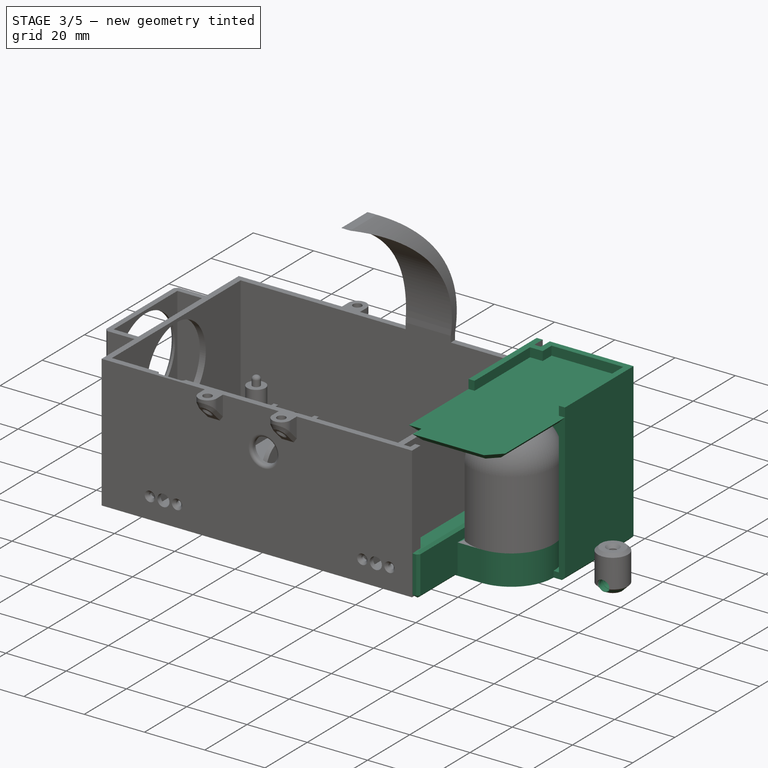
[diagram: stage 3 of 5 — iso view after this stage's code; geometry added in this stage tinted green]
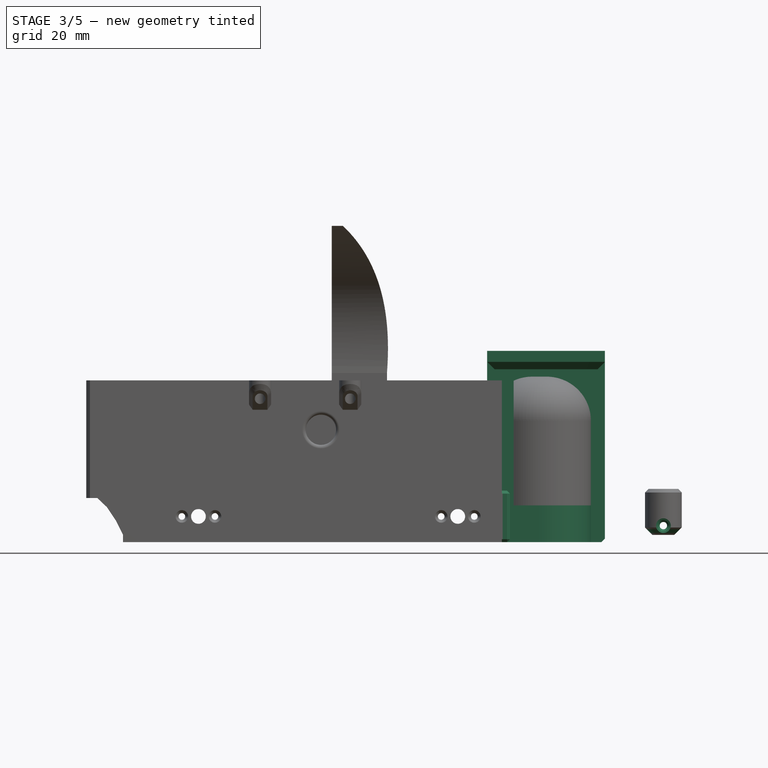
[diagram: stage 3 of 5 — front view after this stage's code; geometry added in this stage tinted green]
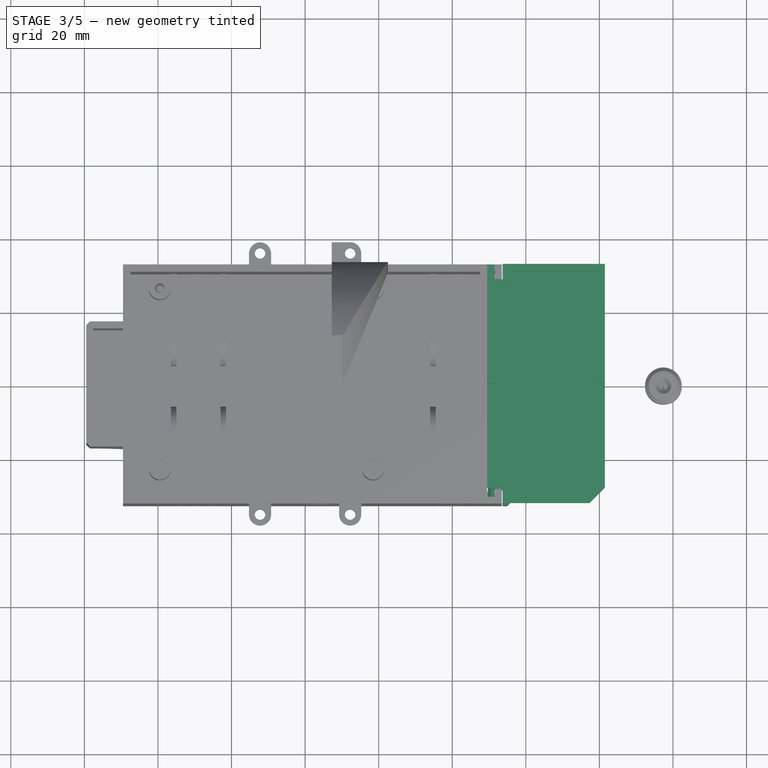
[diagram: stage 3 of 5 — top view after this stage's code; geometry added in this stage tinted green]
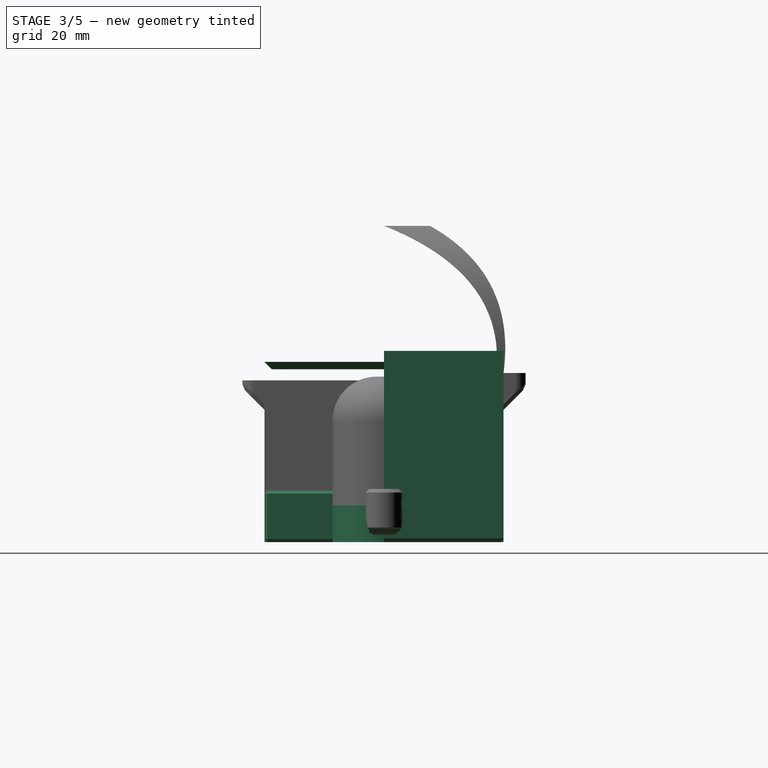
[diagram: stage 3 of 5 — right view after this stage's code; geometry added in this stage tinted green]
FEATURE [PartDesign::Body] Body002  label="CameraHat"
  AutoGroupSolids = false
  ExportMode = 0
  Group = -> [Sketch020,Import,Pad011,Sketch021,Pad012,Sketch022,Pocket010,Chamfer002,Fillet013,Fillet014]
  Origin = -> Origin002
  Tip = -> Fillet014
  _ExportChildren = -> [Import,Pad011,Pad012,Pocket010,Chamfer002,Fillet013,Fillet014]
  _GroupVersion = 1
FEATURE [Part::SubShapeBinder] Import018  label="Import018(Pocket027)"
  BindCopyOnChange = 0
  BindMode = 0
  ClaimChildren = false
  Context = -> Body009 [Import018.]
  FillStyle = 0
  Fuse = false
  MakeFace = false
  PartialLoad = false
  Relative = true
  Support = -> [Body004[Pocket027.]]
  _Version = 7
FEATURE [Sketcher::SketchObject] Sketch090
  ExternalGeometry = -> [Import018]
  FullyConstrained = true
  MapMode = 13
  Placement = pos=(60.8333,10.8137,45.01) rot=(0,1,0;3.14159rad)
  Support = -> [Import018]
  sketch-geometry (10):
    g0: LineSegment StartX=-16.491 StartY=21.6763 StartZ=0 EndX=-20.6567 EndY=17.5106 EndZ=0
    g1: LineSegment StartX=-20.6567 StartY=17.5106 StartZ=0 EndX=-20.6567 EndY=-39.138 EndZ=0
    g2: LineSegment StartX=-20.6567 StartY=-39.138 StartZ=0 EndX=-16.491 EndY=-43.3037 EndZ=0
    g3: LineSegment StartX=-16.491 StartY=-43.3037 StartZ=0 EndX=7.13333 EndY=-43.3137 EndZ=0
    g4: LineSegment StartX=7.13333 StartY=-43.3137 StartZ=0 EndX=7.13333 EndY=-39.1137 EndZ=0
    g5: LineSegment StartX=7.13333 StartY=-39.1137 StartZ=0 EndX=11.3333 EndY=-39.1137 EndZ=0
    g6: LineSegment StartX=11.3333 StartY=-39.1137 StartZ=0 EndX=11.3333 EndY=17.4763 EndZ=0
    g7: LineSegment StartX=11.3333 StartY=17.4763 StartZ=0 EndX=7.12333 EndY=17.4763 EndZ=0
    g8: LineSegment StartX=7.12333 StartY=17.4763 StartZ=0 EndX=7.12333 EndY=21.6763 EndZ=0
    g9: LineSegment StartX=7.12333 StartY=21.6763 StartZ=0 EndX=-16.491 EndY=21.6763 EndZ=0
  constraints (21):
    c: Coincident(g-3,g0)
    c: Coincident(g0,g-3)
    c: Coincident(g0,g1)
    c: Coincident(g1,g-4)
    c: Coincident(g1,g2)
    c: Coincident(g2,g-4)
    c: Coincident(g2,g3)
    c: Coincident(g3,g-5)
    c: Coincident(g3,g4)
    c: Coincident(g4,g-5)
    c: Coincident(g4,g5)
    c: Coincident(g5,g-6)
    c: Coincident(g5,g6)
    c: Vertical(g6)
    c: Coincident(g6,g7)
    c: Coincident(g7,g-7)
    c: Coincident(g7,g8)
    c: Coincident(g8,g-7)
    c: Coincident(g8,g9)
    c: Coincident(g9,g0)
    c: Horizontal(g7)
FEATURE [PartDesign::Pad] Pad053
  ClaimChildren = false
  Direction = (1,1,1)
  Fit = 0
  FitJoin = 0
  InnerFit = 0
  InnerFitJoin = 0
  InnerTaperAngle = 0
  InnerTaperAngleRev = 0
  Length = 2
  Length2 = 100
  Linearize = true
  NewSolid = false
  Profile = -> Sketch090
  Reversed = true
  Suppress = false
  Type = 0
  _ProfileBasedVersion = 1
  expr: Length = <<Params>>.wall_width
FEATURE [PartDesign::Chamfer] Chamfer023
  Angle = 45
  Base = -> Pad053 [Face11]
  BaseFeature = -> Pad053
  ChamferType = 0
  FlipDirection = false
  NewSolid = false
  Size = 1.99
  Size2 = 1
  SupportTransform = false
  Suppress = false
FEATURE [Sketcher::SketchObject] Sketch100
  AttachmentOffset = pos=(0,0,-2) rot=(0,0,1;0rad)
  ExternalGeometry = -> [Chamfer026]
  FullyConstrained = true
  MapMode = 5
  Placement = pos=(0,2,4e-16) rot=(1,0,0;1.5708rad)
  Support = -> [XZ_Plane011]
  sketch-geometry (2):
    g0: Circle CenterX=97.3974 CenterY=2.5 CenterZ=0 NormalX=0 NormalY=0 NormalZ=1 AngleXU=0 Radius=2
    g1: GeomPoint [constr] X=97.3974 Y=0 Z=0
  constraints (4):
    c: Symmetric(g-3,g-3,g1)
    c: Vertical(g0,g1)
    c: DistanceY(g1,g0) = 2.5
    c: Diameter(g0) = 4
FEATURE [PartDesign::Chamfer] Chamfer027
  Angle = 45
  Base = -> Chamfer026 [Edge3]
  BaseFeature = -> Chamfer026
  ChamferType = 0
  FlipDirection = false
  NewSolid = false
  Size = 2
  Size2 = 1
  SupportTransform = false
  Suppress = false
FEATURE [PartDesign::Pocket] Pocket033
  BaseFeature = -> Chamfer027
  ClaimChildren = false
  Fit = 0
  FitJoin = 0
  InnerFit = 0
  InnerFitJoin = 0
  InnerTaperAngle = 0
  InnerTaperAngleRev = 0
  Length = 13
  Length2 = 100
  Linearize = true
  NewSolid = false
  Profile = -> Sketch100
  Reversed = true
  Suppress = false
  Type = 1
  _ProfileBasedVersion = 1
FEATURE [Sketcher::SketchObject] Sketch101
  ExternalGeometry = -> [Pocket033]
  FullyConstrained = true
  MapMode = 5
  Placement = pos=(0,0,0) rot=(1,0,0;1.5708rad)
  Support = -> [XZ_Plane011]
  sketch-geometry (1):
    g0: Circle CenterX=97.3974 CenterY=2.5 CenterZ=0 NormalX=0 NormalY=0 NormalZ=1 AngleXU=0 Radius=1
  constraints (2):
    c: Coincident(g0,g-3)
    c: Diameter(g0) = 2
FEATURE [PartDesign::Pocket] Pocket034
  BaseFeature = -> Pocket033
  ClaimChildren = false
  Fit = 0
  FitJoin = 0
  InnerFit = 0
  InnerFitJoin = 0
  InnerTaperAngle = 0
  InnerTaperAngleRev = 0
  Length = 5
  Length2 = 100
  Linearize = true
  NewSolid = false
  Profile = -> Sketch101
  Suppress = false
  Type = 1
  _ProfileBasedVersion = 1
FEATURE [Sketcher::SketchObject] Sketch102
  AttachmentOffset = pos=(-1,0,1) rot=(0,0,1;0rad)
  ExternalGeometry = -> [Pocket034]
  FullyConstrained = true
  MapMode = 5
  Placement = pos=(-1,1,2e-16) rot=(1,0,0;1.5708rad)
  Support = -> [Pocket034]
  sketch-geometry (2):
    g0: Circle CenterX=98.3974 CenterY=2.5 CenterZ=0 NormalX=0 NormalY=0 NormalZ=1 AngleXU=0 Radius=2
    g1: Circle CenterX=98.3974 CenterY=2.5 CenterZ=0 NormalX=0 NormalY=0 NormalZ=1 AngleXU=0 Radius=1.75
  constraints (4):
    c: Coincident(g0,g-3)
    c: Coincident(g1,g0)
    c: Diameter(g1) = 3.5
    c: Equal(g-3,g0)
FEATURE [PartDesign::Pad] Pad058
  BaseFeature = -> Pocket034
  ClaimChildren = false
  Direction = (1,1,1)
  Fit = 0
  FitJoin = 0
  InnerFit = 0
  InnerFitJoin = 0
  InnerTaperAngle = 0
  InnerTaperAngleRev = 0
  Length = 0.8
  Length2 = 100
  Linearize = true
  NewSolid = false
  Profile = -> Sketch102
  Suppress = false
  Type = 0
  _ProfileBasedVersion = 1
FEATURE [PartDesign::Chamfer] Chamfer028
  Angle = 45
  Base = -> Pad058 [Edge31]
  BaseFeature = -> Pad058
  ChamferType = 0
  FlipDirection = false
  NewSolid = false
  Size = 0.17
  Size2 = 1
  SupportTransform = false
  Suppress = false
FEATURE [PartDesign::LinearPattern] LinearPattern
  BaseFeature = -> Chamfer028
  CopyShape = false
  Direction = -> Y_Axis011
  Length = 4.2
  NewSolid = false
  Occurrences = 3
  OriginalSubs = -> [Pad058,Chamfer028]
  Originals = -> [Pad058,Chamfer028]
  ParallelTransform = true
  Reversed = true
  SubTransform = true
  Suppress = false
FEATURE [PartDesign::Chamfer] Chamfer029
  Angle = 45
  Base = -> LinearPattern [Edge22]
  BaseFeature = -> LinearPattern
  ChamferType = 0
  FlipDirection = false
  NewSolid = false
  Size = 0.6
  Size2 = 1
  SupportTransform = false
  Suppress = false
FEATURE [PartDesign::Body] Body012  label="WeederCap"
  AutoGroupSolids = false
  ExportMode = 0
  Group = -> [Import021,Sketch104,Pad059,Thickness,Fillet016,Sketch105,Pocket036,Sketch106,Pad060,Mirrored011]
  Origin = -> Origin012
  Tip = -> Mirrored011
  _ExportChildren = -> [Import021,Pad059,Thickness,Fillet016,Pocket036,Pad060,Mirrored011]
  _GroupVersion = 1
FEATURE [Part::SubShapeBinder] Import022  label="Import022(Mirrored012)"
  BindCopyOnChange = 0
  BindMode = 0
  ClaimChildren = false
  Context = -> Body004 [Import022.]
  FillStyle = 0
  Fuse = false
  MakeFace = false
  PartialLoad = false
  Relative = true
  Support = -> [Body[Mirrored012.]]
  _Version = 7
FEATURE [Sketcher::SketchObject] Sketch034
  ExternalGeometry = -> [Import022]
  FullyConstrained = true
  MapMode = 5
  Placement = pos=(0,0,-2) rot=(1,0,0;3.14159rad)
  Support = -> [Import022]
  expr: Constraints[4] = <<Params>>.fit_gap
  expr: Constraints[5] = <<Params>>.fit_gap
  sketch-geometry (6):
    g0: LineSegment StartX=49.5 StartY=0 StartZ=0 EndX=49.5 EndY=-28.3 EndZ=0
    g1: LineSegment StartX=53.7 StartY=-32.5 StartZ=0 EndX=53.7 EndY=-28.3 EndZ=0
    g2: LineSegment StartX=49.5 StartY=-28.3 StartZ=0 EndX=53.7 EndY=-28.3 EndZ=0
    g3: LineSegment StartX=53.7 StartY=-32.5 StartZ=0 EndX=81.5 EndY=-32.5 EndZ=0
    g4: LineSegment StartX=81.5 StartY=-32.5 StartZ=0 EndX=81.5 EndY=0 EndZ=0
    g5: LineSegment StartX=81.5 StartY=0 StartZ=0 EndX=49.5 EndY=0 EndZ=0
  constraints (18):
    c: PointOnObject(g0,g-1)
    c: Vertical(g0)
    c: Vertical(g1)
    c: Vertical(g0,g-3)
    c: DistanceY(g-3,g0) = 0.2
    c: DistanceX(g-4,g1) = 0.2
    c: Coincident(g2,g0)
    c: Coincident(g2,g1)
    c: Horizontal(g2)
    c: Horizontal(g1,g-4)
    c: Coincident(g1,g3)
    c: Horizontal(g3)
    c: Coincident(g3,g4)
    c: Vertical(g4)
    c: Coincident(g4,g5)
    c: Horizontal(g5)
    c: DistanceX(g5,g5) = 32
    c: Coincident(g5,g0)
FEATURE [PartDesign::Pad] Pad020
  ClaimChildren = false
  Direction = (1,1,1)
  Fit = 0
  FitJoin = 0
  InnerFit = 0
  InnerFitJoin = 0
  InnerTaperAngle = 0
  InnerTaperAngleRev = 0
  Length = 2
  Length2 = 100
  Linearize = true
  NewSolid = false
  Profile = -> Sketch034
  Reversed = true
  Suppress = false
  Type = 0
  _ProfileBasedVersion = 1
  expr: Length = <<Params>>.wall_width
FEATURE [Part::SubShapeBinder] Import023  label="Import023(Sketch)"
  BindCopyOnChange = 0
  BindMode = 0
  ClaimChildren = false
  Context = -> Body004 [Import023.]
  FillStyle = 0
  Fuse = false
  MakeFace = false
  PartialLoad = false
  Relative = true
  Support = -> [Body[Sketch.]]
  _Version = 7
FEATURE [Sketcher::SketchObject] Sketch035
  ExternalGeometry = -> [Pad020,Import023,Import022]
  FullyConstrained = true
  MapMode = 5
  Placement = pos=(0,0,5e-16) rot=(0,0,1;0rad)
  Support = -> [Pad020]
  expr: Constraints[20] = <<Params>>.fit_gap
  expr: Constraints[21] = <<Params>>.fit_gap
  expr: Constraints[24] = <<Params>>.wall_width
  expr: Constraints[25] = <<Params>>.wall_width
  expr: Constraints[26] = <<Params>>.wall_width
  expr: Constraints[27] = <<Params>>.wall_width
  sketch-geometry (14):
    g0: LineSegment StartX=49.5 StartY=32.3 StartZ=0 EndX=49.5 EndY=0 EndZ=0
    g1: LineSegment StartX=81.5 StartY=0 StartZ=0 EndX=81.5 EndY=32.5 EndZ=0
    g2: LineSegment StartX=81.5 StartY=32.5 StartZ=0 EndX=53.7 EndY=32.5 EndZ=0
    g3: LineSegment StartX=53.7 StartY=32.5 StartZ=0 EndX=53.7 EndY=28.3 EndZ=0
    g4: LineSegment StartX=53.7 StartY=28.3 StartZ=0 EndX=51.5 EndY=28.3 EndZ=0
    g5: LineSegment StartX=51.5 StartY=28.3 StartZ=0 EndX=51.5 EndY=32.3 EndZ=0
    g6: LineSegment StartX=51.5 StartY=32.3 StartZ=0 EndX=49.5 EndY=32.3 EndZ=0
    g7: LineSegment StartX=55.7 StartY=30.5 StartZ=0 EndX=55.7 EndY=26.3 EndZ=0
    g8: LineSegment StartX=55.7 StartY=26.3 StartZ=0 EndX=51.5 EndY=26.3 EndZ=0
    g9: LineSegment StartX=51.5 StartY=26.3 StartZ=0 EndX=51.5 EndY=0 EndZ=0
    g10: LineSegment StartX=79.5 StartY=0 StartZ=0 EndX=79.5 EndY=30.5 EndZ=0
    g11: LineSegment StartX=79.5 StartY=30.5 StartZ=0 EndX=55.7 EndY=30.5 EndZ=0
    g12: LineSegment StartX=79.5 StartY=0 StartZ=0 EndX=81.5 EndY=0 EndZ=0
    g13: LineSegment StartX=49.5 StartY=0 StartZ=0 EndX=51.5 EndY=0 EndZ=0
  constraints (39):
    c: Vertical(g0)
    c: Coincident(g1,g2)
    c: Coincident(g2,g3)
    c: Coincident(g3,g4)
    c: Horizontal(g4)
    c: Coincident(g4,g5)
    c: Coincident(g5,g6)
    c: Coincident(g6,g0)
    c: Vertical(g7)
    c: Coincident(g7,g8)
    c: Coincident(g8,g9)
    c: Vertical(g10)
    c: Coincident(g10,g11)
    c: Coincident(g11,g7)
    c: Horizontal(g11)
    c: Horizontal(g-1,g0)
    c: Vertical(g0,g-3)
    c: Coincident(g-4,g1)
    c: Coincident(g2,g-5)
    c: Coincident(g3,g-5)
    c: DistanceX(g4,g-6) = 0.2
    c: DistanceY(g0,g-3) = 0.2
    c: Horizontal(g6)
    c: Vertical(g5)
    c: DistanceX(g10,g1) = 2
    c: DistanceY(g10,g1) = 2
    c: DistanceY(g7,g3) = 2
    c: DistanceX(g3,g7) = 2
    c: Horizontal(g8)
    c: Vertical(g9)
    c: Vertical(g8,g4)
    c: Horizontal(g9,g0)
    c: Horizontal(g10,g1)
    c: Horizontal(g10,g9)
    c: Coincident(g12,g10)
    c: Coincident(g12,g1)
    c: Coincident(g13,g0)
    c: Coincident(g13,g9)
    c: Vertical(g1)
FEATURE [PartDesign::Pad] Pad021
  BaseFeature = -> Pad020
  ClaimChildren = false
  Direction = (1,1,1)
  Fit = 0
  FitJoin = 0
  InnerFit = 0
  InnerFitJoin = 0
  InnerTaperAngle = 0
  InnerTaperAngleRev = 0
  Length = 50
  Length2 = 100
  Linearize = true
  NewSolid = false
  Profile = -> Sketch035
  Suppress = false
  Type = 0
  _ProfileBasedVersion = 1
FEATURE [PartDesign::Chamfer] Chamfer006
  Angle = 45
  Base = -> Pad021 [Edge41]
  BaseFeature = -> Pad021
  ChamferType = 0
  FlipDirection = false
  NewSolid = false
  Size = 1
  Size2 = 1
  SupportTransform = false
  Suppress = false
FEATURE [PartDesign::Chamfer] Chamfer007
  Angle = 45
  Base = -> Chamfer006 [Edge34,Edge14,Edge36,Edge38,Edge39]
  BaseFeature = -> Chamfer006
  ChamferType = 0
  FlipDirection = false
  NewSolid = false
  Size = 1
  Size2 = 1
  SupportTransform = false
  Suppress = false
FEATURE [Sketcher::SketchObject] Sketch047  label="Arch1"
  ExternalGeometry = -> [Import025,Pad028]
  FullyConstrained = true
  MapMode = 5
  Placement = pos=(0,0,44) rot=(0,0,1;0rad)
  Support = -> [Pad028]
  sketch-geometry (4):
    g0: LineSegment StartX=7.25 StartY=32.5 StartZ=0 EndX=22.25 EndY=32.5 EndZ=0
    g1: LineSegment StartX=22.25 StartY=32.5 StartZ=0 EndX=22.25 EndY=30.5 EndZ=0
    g2: LineSegment StartX=22.25 StartY=30.5 StartZ=0 EndX=7.25 EndY=30.5 EndZ=0
    g3: LineSegment StartX=7.25 StartY=30.5 StartZ=0 EndX=7.25 EndY=32.5 EndZ=0
  constraints (11):
    c: Coincident(g0,g1)
    c: Coincident(g1,g2)
    c: Coincident(g2,g3)
    c: Coincident(g3,g0)
    c: Horizontal(g0)
    c: Vertical(g3)
    c: Horizontal(g2)
    c: Vertical(g1)
    c: Coincident(g0,g-5)
    c: Vertical(g0,g-4)
    c: Horizontal(g2,g-3)
FEATURE [PartDesign::Plane] DatumPlane  label="Middle"
  AttachmentOffset = pos=(0,0,15) rot=(0,0,1;0rad)
  Length = 22.25
  MapMode = 2
  MinimumLength = 10
  MinimumWidth = 10
  Placement = pos=(6e-16,-6e-16,57) rot=(0,0,1;0rad)
  ResizeMode = 0
  Support = -> [Sketch043]
  Width = 38.5
FEATURE [Sketcher::SketchObject] Sketch046  label="Arch2"
  ExternalGeometry = -> [Pad028]
  FullyConstrained = true
  MapMode = 5
  Placement = pos=(6e-16,-6e-16,57) rot=(0,0,1;0rad)
  Support = -> [DatumPlane]
  sketch-geometry (4):
    g0: LineSegment StartX=7.25 StartY=32.5 StartZ=0 EndX=22.25 EndY=32.5 EndZ=0
    g1: LineSegment StartX=22.25 StartY=32.5 StartZ=0 EndX=22.25 EndY=29.5 EndZ=0
    g2: LineSegment StartX=22.25 StartY=29.5 StartZ=0 EndX=7.25 EndY=29.5 EndZ=0
    g3: LineSegment StartX=7.25 StartY=29.5 StartZ=0 EndX=7.25 EndY=32.5 EndZ=0
  constraints (12):
    c: Coincident(g0,g1)
    c: Coincident(g1,g2)
    c: Coincident(g2,g3)
    c: Coincident(g3,g0)
    c: Horizontal(g0)
    c: Horizontal(g2)
    c: Vertical(g1)
    c: Vertical(g3)
    c: DistanceY(g1,g1) = 3
    c: Vertical(g1,g-3)
    c: DistanceY(g1,g-3) = 1
    c: Vertical(g2,g-3)
FEATURE [PartDesign::Plane] DatumPlane001  label="Top"
  AttachmentOffset = pos=(0,0,40) rot=(0,0,1;0rad)
  Length = 22.25
  MapMode = 5
  MinimumLength = 10
  MinimumWidth = 10
  Placement = pos=(0,0,84) rot=(0,0,1;0rad)
  ResizeMode = 0
  Support = -> [Pad028]
  Width = 38.5
FEATURE [Sketcher::SketchObject] Sketch045  label="Arch3"
  ExternalGeometry = -> [Pad028]
  FullyConstrained = true
  MapMode = 5
  Placement = pos=(0,0,84) rot=(0,0,1;0rad)
  Support = -> [DatumPlane001]
  sketch-geometry (4):
    g0: LineSegment StartX=10.25 StartY=0 StartZ=0 EndX=7.25 EndY=0 EndZ=0
    g1: LineSegment StartX=7.25 StartY=0 StartZ=0 EndX=7.25 EndY=12.5 EndZ=0
    g2: LineSegment StartX=7.25 StartY=12.5 StartZ=0 EndX=10.25 EndY=12.5 EndZ=0
    g3: LineSegment StartX=10.25 StartY=12.5 StartZ=0 EndX=10.25 EndY=0 EndZ=0
  constraints (12):
    c: Coincident(g0,g1)
    c: Coincident(g1,g2)
    c: Coincident(g2,g3)
    c: Coincident(g3,g0)
    c: Horizontal(g0)
    c: Horizontal(g2)
    c: Vertical(g1)
    c: Vertical(g3)
    c: PointOnObject(g0,g-1)
    c: DistanceY(g3,g3) = 12.5
    c: DistanceX(g2,g2) = 3
    c: Vertical(g1,g-3)
FEATURE [Sketcher::SketchObject] Sketch048
  ExternalGeometry = -> [Pad028]
  FullyConstrained = true
  MapMode = 5
  Placement = pos=(0,0,44) rot=(0,0,1;0rad)
  Support = -> [Pad028]
  sketch-geometry (4):
    g0: LineSegment StartX=9.25 StartY=38.5 StartZ=0 EndX=7.25 EndY=38.5 EndZ=0
    g1: LineSegment StartX=7.25 StartY=38.5 StartZ=0 EndX=7.25 EndY=30.5 EndZ=0
    g2: LineSegment StartX=7.25 StartY=30.5 StartZ=0 EndX=9.25 EndY=30.5 EndZ=0
    g3: LineSegment StartX=9.25 StartY=30.5 StartZ=0 EndX=9.25 EndY=38.5 EndZ=0
  constraints (10):
    c: Coincident(g0,g1)
    c: Coincident(g1,g2)
    c: Horizontal(g0)
    c: Horizontal(g2)
    c: DistanceX(g0,g0) = 2
    c: Coincident(g3,g2)
    c: Coincident(g0,g3)
    c: Coincident(g1,g-3)
    c: Coincident(g0,g-3)
    c: Vertical(g3)
FEATURE [Sketcher::SketchObject] Sketch049
  ExternalGeometry = -> [Sketch048,Sketch046]
  FullyConstrained = true
  MapMode = 5
  Placement = pos=(6e-16,-6e-16,57) rot=(0,0,1;0rad)
  Support = -> [DatumPlane]
  sketch-geometry (4):
    g0: LineSegment StartX=7.25 StartY=32.5 StartZ=0 EndX=9.25 EndY=32.5 EndZ=0
    g1: LineSegment StartX=9.25 StartY=32.5 StartZ=0 EndX=9.25 EndY=30.5 EndZ=0
    g2: LineSegment StartX=9.25 StartY=30.5 StartZ=0 EndX=7.25 EndY=30.5 EndZ=0
    g3: LineSegment StartX=7.25 StartY=30.5 StartZ=0 EndX=7.25 EndY=32.5 EndZ=0
  constraints (10):
    c: Coincident(g0,g1)
    c: Coincident(g1,g2)
    c: Coincident(g2,g3)
    c: Coincident(g3,g0)
    c: Horizontal(g0)
    c: Horizontal(g2)
    c: Vertical(g1)
    c: Vertical(g3)
    c: Coincident(g0,g-4)
    c: Coincident(g1,g-3)
FEATURE [Sketcher::SketchObject] Sketch050
  ExternalGeometry = -> [Sketch045]
  FullyConstrained = true
  MapMode = 5
  Placement = pos=(0,0,84) rot=(0,0,1;0rad)
  Support = -> [DatumPlane001]
  sketch-geometry (4):
    g0: LineSegment StartX=7.25 StartY=12.5 StartZ=0 EndX=10.25 EndY=12.5 EndZ=0
    g1: LineSegment StartX=10.25 StartY=12.5 StartZ=0 EndX=10.25 EndY=0 EndZ=0
    g2: LineSegment StartX=10.25 StartY=0 StartZ=0 EndX=7.25 EndY=0 EndZ=0
    g3: LineSegment StartX=7.25 StartY=0 StartZ=0 EndX=7.25 EndY=12.5 EndZ=0
  constraints (10):
    c: Coincident(g0,g1)
    c: Coincident(g1,g2)
    c: Coincident(g2,g3)
    c: Coincident(g3,g0)
    c: Horizontal(g0)
    c: Horizontal(g2)
    c: Vertical(g1)
    c: Vertical(g3)
    c: Coincident(g0,g-3)
    c: Coincident(g1,g-4)
FEATURE [Sketcher::SketchObject] Sketch058
  ExternalGeometry = -> [Sketch045]
  FullyConstrained = true
  MapMode = 5
  Placement = pos=(0,0,84) rot=(0,0,1;0rad)
  Support = -> [DatumPlane001]
  sketch-geometry (4):
    g0: LineSegment StartX=7.25 StartY=12.5 StartZ=0 EndX=10.25 EndY=12.5 EndZ=0
    g1: LineSegment StartX=10.25 StartY=12.5 StartZ=0 EndX=10.25 EndY=0 EndZ=0
    g2: LineSegment StartX=10.25 StartY=0 StartZ=0 EndX=7.25 EndY=0 EndZ=0
    g3: LineSegment StartX=7.25 StartY=0 StartZ=0 EndX=7.25 EndY=12.5 EndZ=0
  constraints (10):
    c: Coincident(g0,g1)
    c: Coincident(g1,g2)
    c: Coincident(g2,g3)
    c: Coincident(g3,g0)
    c: Horizontal(g0)
    c: Horizontal(g2)
    c: Vertical(g1)
    c: Vertical(g3)
    c: Coincident(g0,g-3)
    c: Coincident(g1,g-4)
FEATURE [Part::SubShapeBinder] Import026  label="Import026(Mirrored012)"
  BindCopyOnChange = 0
  BindMode = 0
  ClaimChildren = false
  Context = -> Body010 [Import026.]
  FillStyle = 0
  Fuse = false
  MakeFace = false
  PartialLoad = false
  Relative = true
  Support = -> [Body[Mirrored012.]]
  _Version = 7
FEATURE [Sketcher::SketchObject] Sketch091
  ExternalGeometry = -> [Import026]
  FullyConstrained = true
  MapMode = 5
  Placement = pos=(0,0,-2) rot=(1,0,0;3.14159rad)
  Support = -> [Import026]
  expr: Constraints[10] = <<Params>>.wall_width
  expr: Constraints[6] = <<Params>>.fit_gap
  expr: Constraints[8] = <<Params>>.fit_gap
  expr: Constraints[9] = <<Params>>.fit_gap
  sketch-geometry (6):
    g0: LineSegment StartX=53.7 StartY=32.5 StartZ=0 EndX=53.7 EndY=28.3 EndZ=0
    g1: LineSegment StartX=53.7 StartY=28.3 StartZ=0 EndX=49.7 EndY=28.3 EndZ=0
    g2: LineSegment StartX=49.7 StartY=28.3 StartZ=0 EndX=49.7 EndY=0 EndZ=0
    g3: LineSegment StartX=49.7 StartY=0 StartZ=0 EndX=55.7 EndY=0 EndZ=0
    g4: LineSegment StartX=55.7 StartY=0 StartZ=0 EndX=55.7 EndY=32.5 EndZ=0
    g5: LineSegment StartX=55.7 StartY=32.5 StartZ=0 EndX=53.7 EndY=32.5 EndZ=0
  constraints (18):
    c: Coincident(g0,g1)
    c: Coincident(g1,g2)
    c: Coincident(g2,g3)
    c: Coincident(g3,g4)
    c: Coincident(g4,g5)
    c: Coincident(g5,g0)
    c: DistanceX(g-4,g0) = 0.2
    c: Horizontal(g0,g-4)
    c: DistanceX(g-3,g1) = 0.2
    c: DistanceY(g0,g-4) = 0.2
    c: DistanceX(g5,g5) = 2
    c: Horizontal(g5)
    c: Vertical(g0)
    c: Horizontal(g1)
    c: Horizontal(g2,g3)
    c: Horizontal(g3,g-1)
    c: Vertical(g2)
    c: Vertical(g4)
FEATURE [PartDesign::Pad] Pad054
  ClaimChildren = false
  Direction = (1,1,1)
  Fit = 0
  FitJoin = 0
  InnerFit = 0
  InnerFitJoin = 0
  InnerTaperAngle = 0
  InnerTaperAngleRev = 0
  Length = 2
  Length2 = 100
  Linearize = true
  NewSolid = false
  Profile = -> Sketch091
  Reversed = true
  Suppress = false
  Type = 0
  _ProfileBasedVersion = 1
  expr: Length = <<Params>>.wall_width
FEATURE [Sketcher::SketchObject] Sketch092
  ExternalGeometry = -> [Pad054,Import026]
  FullyConstrained = true
  MapMode = 5
  Placement = pos=(0,0,-7e-16) rot=(0,0,1;0rad)
  Support = -> [Pad054]
  expr: Constraints[17] = <<Params>>.fit_gap
  expr: Constraints[18] = <<Params>>.fit_gap
  sketch-geometry (8):
    g0: LineSegment StartX=53.7 StartY=-32.5 StartZ=0 EndX=55.7 EndY=-32.5 EndZ=0
    g1: LineSegment StartX=55.7 StartY=-32.5 StartZ=0 EndX=55.7 EndY=0 EndZ=0
    g2: LineSegment StartX=55.7 StartY=0 StartZ=0 EndX=49.7 EndY=0 EndZ=0
    g3: LineSegment StartX=49.7 StartY=0 StartZ=0 EndX=49.7 EndY=-30.5 EndZ=0
    g4: LineSegment StartX=49.7 StartY=-30.5 StartZ=0 EndX=51.5 EndY=-30.5 EndZ=0
    g5: LineSegment StartX=51.5 StartY=-30.5 StartZ=0 EndX=51.5 EndY=-28.3 EndZ=0
    g6: LineSegment StartX=51.5 StartY=-28.3 StartZ=0 EndX=53.7 EndY=-28.3 EndZ=0
    g7: LineSegment StartX=53.7 StartY=-28.3 StartZ=0 EndX=53.7 EndY=-32.5 EndZ=0
  constraints (19):
    c: Coincident(g-4,g0)
    c: Coincident(g0,g-5)
    c: Coincident(g0,g1)
    c: Coincident(g1,g-5)
    c: Coincident(g1,g2)
    c: Coincident(g2,g-3)
    c: Coincident(g2,g3)
    c: Vertical(g3)
    c: Coincident(g3,g4)
    c: Horizontal(g4)
    c: Coincident(g4,g5)
    c: Vertical(g5)
    c: Coincident(g5,g6)
    c: Coincident(g6,g-4)
    c: Horizontal(g6)
    c: Coincident(g6,g7)
    c: Coincident(g7,g0)
    c: DistanceY(g-6,g4) = 0.2
    c: DistanceX(g4,g-6) = 0.2
FEATURE [PartDesign::Pad] Pad055
  BaseFeature = -> Pad054
  ClaimChildren = false
  Direction = (1,1,1)
  Fit = 0
  FitJoin = 0
  InnerFit = 0
  InnerFitJoin = 0
  InnerTaperAngle = 0
  InnerTaperAngleRev = 0
  Length = 12
  Length2 = 100
  Linearize = true
  NewSolid = false
  Profile = -> Sketch092
  Refine = true
  Suppress = false
  Type = 0
  _ProfileBasedVersion = 1
FEATURE [PartDesign::Chamfer] Chamfer024
  Angle = 45
  Base = -> Pad055 [Edge2]
  BaseFeature = -> Pad055
  ChamferType = 0
  FlipDirection = false
  NewSolid = false
  Size = 2.12
  Size2 = 1
  SupportTransform = false
  Suppress = false
FEATURE [PartDesign::Chamfer] Chamfer025
  Angle = 45
  Base = -> Chamfer024 [Edge28,Edge27,Edge25,Edge14,Edge16,Edge30,Edge21,Edge20,Edge19,Edge7,Edge17,Edge12,Edge23]
  BaseFeature = -> Chamfer024
  ChamferType = 0
  FlipDirection = false
  NewSolid = false
  Size = 0.8
  Size2 = 1
  SupportTransform = false
  Suppress = false
FEATURE [PartDesign::Mirrored] Mirrored010
  BaseFeature = -> Chamfer025
  CopyShape = false
  MirrorPlane = -> XZ_Plane010
  NewSolid = false
  OriginalSubs = -> [Pad055,Pad054,Chamfer024,Chamfer025]
  Originals = -> [Pad055,Pad054,Chamfer024,Chamfer025]
  ParallelTransform = true
  Refine = true
  SubTransform = true
  Suppress = false
FEATURE [Sketcher::SketchObject] Sketch093
  ExternalGeometry = -> [Mirrored010]
  FullyConstrained = true
  MapMode = 5
  Placement = pos=(3e-16,4e-16,-2) rot=(1,0,0;3.14159rad)
  Support = -> [Mirrored010]
  sketch-geometry (4):
    g0: ArcOfCircle CenterX=63.7 CenterY=0 CenterZ=0 NormalX=0 NormalY=0 NormalZ=1 AngleXU=0 Radius=14 StartAngle=4.71239 EndAngle=7.85398
    g1: LineSegment StartX=63.7 StartY=14 StartZ=0 EndX=54.9 EndY=14 EndZ=0
    g2: LineSegment StartX=54.9 StartY=14 StartZ=0 EndX=54.9 EndY=-14 EndZ=0
    g3: LineSegment StartX=54.9 StartY=-14 StartZ=0 EndX=63.7 EndY=-14 EndZ=0
  constraints (12):
    c: PointOnObject(g0,g-1)
    c: Vertical(g0,g0)
    c: Vertical(g0,g0)
    c: Diameter(g0) = 28
    c: Tangent(g0,g1) = -1.5708
    c: Coincident(g1,g2)
    c: Vertical(g2)
    c: Coincident(g2,g3)
    c: Coincident(g3,g0)
    c: Horizontal(g3)
    c: Vertical(g1,g-3)
    c: DistanceX(g-4,g0) = 14
FEATURE [PartDesign::Pad] Pad056
  BaseFeature = -> Mirrored010
  ClaimChildren = false
  Direction = (1,1,1)
  Fit = 0
  FitJoin = 0
  InnerFit = 0
  InnerFitJoin = 0
  InnerTaperAngle = 0
  InnerTaperAngleRev = 0
  Length = 10
  Length2 = 100
  Linearize = true
  NewSolid = false
  Profile = -> Sketch093
  Reversed = true
  Suppress = false
  Type = 0
  _ProfileBasedVersion = 1
FEATURE [Sketcher::SketchObject] Sketch094
  ExternalGeometry = -> [Pad056]
  FullyConstrained = true
  MapMode = 5
  Placement = pos=(-1.3e-15,-2.6e-15,12) rot=(0,0,1;0rad)
  Support = -> [Pad056]
  sketch-geometry (1):
    g0: Circle CenterX=63.7 CenterY=0 CenterZ=0 NormalX=0 NormalY=0 NormalZ=1 AngleXU=0 Radius=12
  constraints (2):
    c: Coincident(g0,g-3)
    c: Diameter(g0) = 24
FEATURE [PartDesign::Pocket] Pocket028
  BaseFeature = -> Pad056
  ClaimChildren = false
  Fit = 0
  FitJoin = 0
  InnerFit = 0
  InnerFitJoin = 0
  InnerTaperAngle = 0
  InnerTaperAngleRev = 0
  Length = 0
  Length2 = 100
  Linearize = true
  NewSolid = false
  Offset = -2
  Profile = -> Sketch094
  Refine = true
  Suppress = false
  Type = 3
  UpToFace = -> Pad056 [Face42]
  _ProfileBasedVersion = 1
FEATURE [Sketcher::SketchObject] Sketch095
  ExternalGeometry = -> [Pocket028]
  FullyConstrained = true
  MapMode = 5
  Placement = pos=(0,0,-4.1e-15) rot=(0,0,1;0rad)
  Support = -> [Pocket028]
  sketch-geometry (1):
    g0: Circle CenterX=63.7 CenterY=0 CenterZ=0 NormalX=0 NormalY=0 NormalZ=1 AngleXU=0 Radius=3.15
  constraints (2):
    c: Coincident(g0,g-3)
    c: Diameter(g0) = 6.3
FEATURE [PartDesign::Pocket] Pocket029
  BaseFeature = -> Pocket028
  ClaimChildren = false
  Fit = 0
  FitJoin = 0
  InnerFit = 0
  InnerFitJoin = 0
  InnerTaperAngle = 0
  InnerTaperAngleRev = 0
  Length = 1.62
  Length2 = 100
  Linearize = true
  NewSolid = false
  Profile = -> Sketch095
  Suppress = false
  Type = 0
  _ProfileBasedVersion = 1
FEATURE [Sketcher::SketchObject] Sketch096
  ExternalGeometry = -> [Pocket029]
  FullyConstrained = true
  MapMode = 5
  Placement = pos=(2e-16,4e-16,-1.62) rot=(0,0,1;0rad)
  Support = -> [Pocket029]
  sketch-geometry (1):
    g0: Circle CenterX=63.7 CenterY=0 CenterZ=0 NormalX=0 NormalY=0 NormalZ=1 AngleXU=0 Radius=1.5
  constraints (2):
    c: Coincident(g0,g-3)
    c: Diameter(g0) = 3
FEATURE [PartDesign::Pocket] Pocket030
  BaseFeature = -> Pocket029
  ClaimChildren = false
  Fit = 0
  FitJoin = 0
  InnerFit = 0
  InnerFitJoin = 0
  InnerTaperAngle = 0
  InnerTaperAngleRev = 0
  Length = 5
  Length2 = 100
  Linearize = true
  NewSolid = false
  Profile = -> Sketch096
  Suppress = false
  Type = 1
  _ProfileBasedVersion = 1
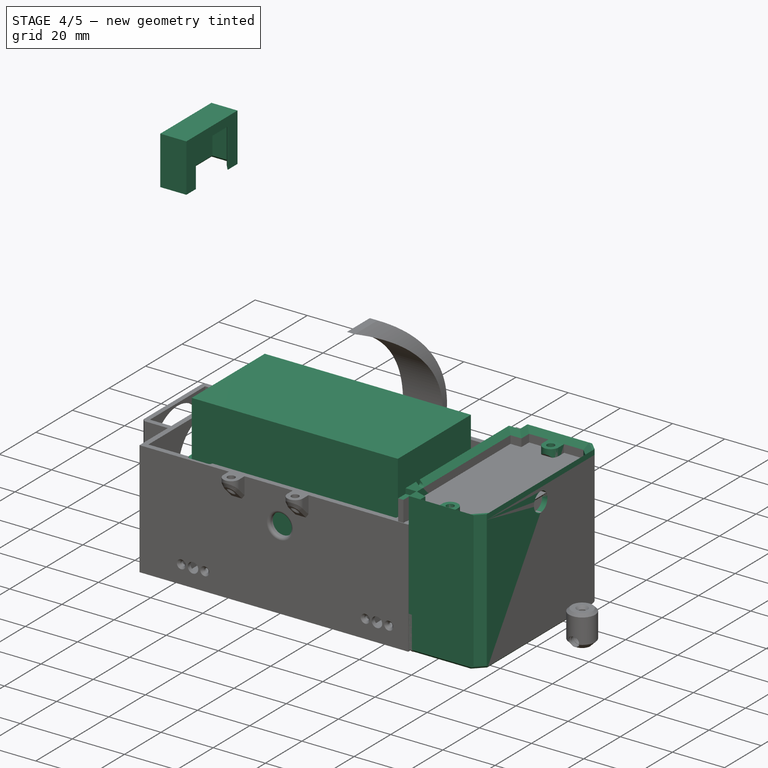
[diagram: stage 4 of 5 — iso view after this stage's code; geometry added in this stage tinted green]
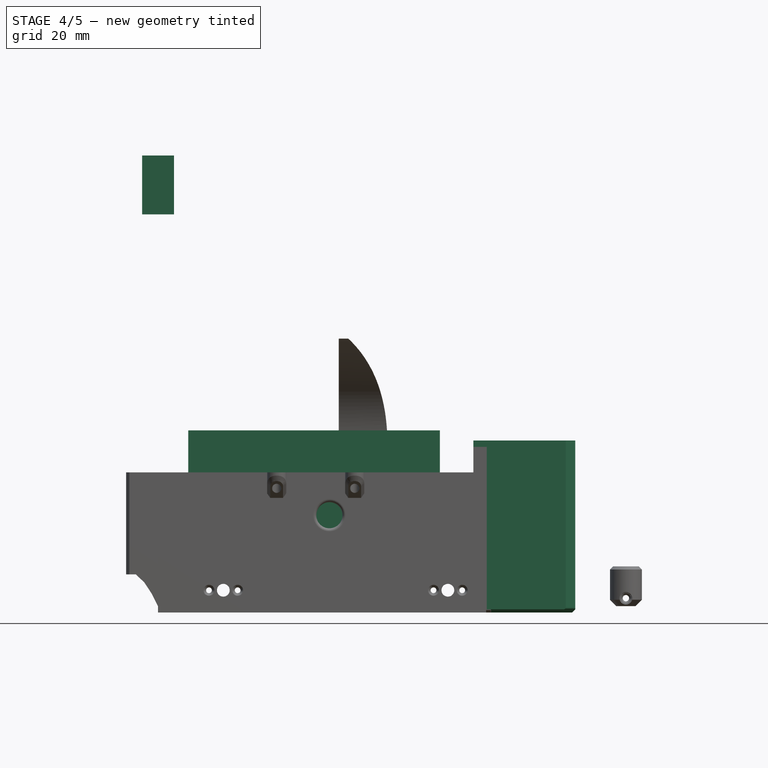
[diagram: stage 4 of 5 — front view after this stage's code; geometry added in this stage tinted green]
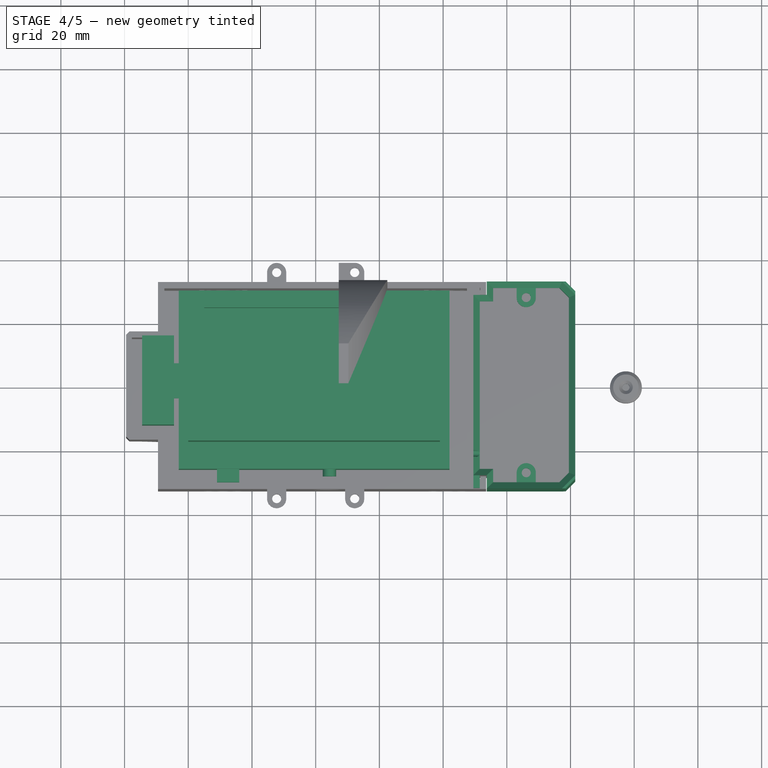
[diagram: stage 4 of 5 — top view after this stage's code; geometry added in this stage tinted green]
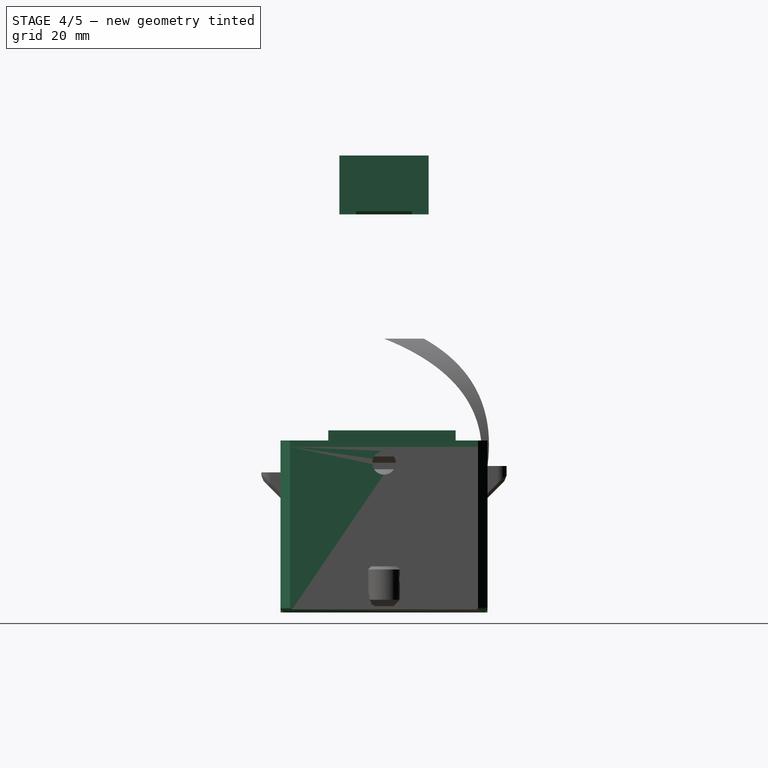
[diagram: stage 4 of 5 — right view after this stage's code; geometry added in this stage tinted green]
FEATURE [Part::SubShapeBinder] Import  label="Import(Pad010)"
  BindCopyOnChange = 0
  BindMode = 0
  ClaimChildren = false
  Context = -> Body002 [Import.]
  FillStyle = 0
  Fuse = false
  MakeFace = false
  PartialLoad = false
  Relative = true
  Support = -> [Body001[Pad010.]]
  _Version = 7
FEATURE [Sketcher::SketchObject] Sketch020
  ExternalGeometry = -> [Import]
  FullyConstrained = true
  MapMode = 5
  Placement = pos=(-3.92e-14,6.16e-14,140) rot=(0,0,1;0rad)
  Support = -> [Import]
  sketch-geometry (4):
    g0: LineSegment StartX=-54.5 StartY=14 StartZ=0 EndX=-44.5 EndY=14 EndZ=0
    g1: LineSegment StartX=-44.5 StartY=14 StartZ=0 EndX=-44.5 EndY=-14 EndZ=0
    g2: LineSegment StartX=-44.5 StartY=-14 StartZ=0 EndX=-54.5 EndY=-14 EndZ=0
    g3: LineSegment StartX=-54.5 StartY=-14 StartZ=0 EndX=-54.5 EndY=14 EndZ=0
  constraints (12):
    c: Coincident(g0,g1)
    c: Coincident(g1,g2)
    c: Coincident(g2,g3)
    c: Coincident(g3,g0)
    c: Horizontal(g0)
    c: Horizontal(g2)
    c: Vertical(g1)
    c: Vertical(g3)
    c: DistanceX(g0,g-4) = 1.5
    c: DistanceY(g-4,g0) = 1.5
    c: DistanceX(g-6,g0) = 1.5
    c: DistanceY(g2,g-5) = 1.5
FEATURE [PartDesign::Pad] Pad011
  ClaimChildren = false
  Direction = (1,1,1)
  Fit = 0
  FitJoin = 0
  InnerFit = 0
  InnerFitJoin = 0
  InnerTaperAngle = 0
  InnerTaperAngleRev = 0
  Length = 1.5
  Length2 = 100
  Linearize = true
  NewSolid = false
  Profile = -> Sketch020
  Suppress = false
  Type = 0
  _ProfileBasedVersion = 1
FEATURE [Sketcher::SketchObject] Sketch021
  ExternalGeometry = -> [Pad011]
  FullyConstrained = true
  MapMode = 5
  Placement = pos=(0,1.428e-13,140) rot=(1,0,0;3.14159rad)
  Support = -> [Pad011]
  sketch-geometry (8):
    g0: LineSegment StartX=-54.5 StartY=14 StartZ=0 EndX=-44.5 EndY=14 EndZ=0
    g1: LineSegment StartX=-44.5 StartY=14 StartZ=0 EndX=-44.5 EndY=-14 EndZ=0
    g2: LineSegment StartX=-44.5 StartY=-14 StartZ=0 EndX=-54.5 EndY=-14 EndZ=0
    g3: LineSegment StartX=-54.5 StartY=-14 StartZ=0 EndX=-54.5 EndY=14 EndZ=0
    g4: LineSegment StartX=-53.3 StartY=12.8 StartZ=0 EndX=-45.7 EndY=12.8 EndZ=0
    g5: LineSegment StartX=-45.7 StartY=12.8 StartZ=0 EndX=-45.7 EndY=-12.8 EndZ=0
    g6: LineSegment StartX=-45.7 StartY=-12.8 StartZ=0 EndX=-53.3 EndY=-12.8 EndZ=0
    g7: LineSegment StartX=-53.3 StartY=-12.8 StartZ=0 EndX=-53.3 EndY=12.8 EndZ=0
  constraints (22):
    c: Coincident(g0,g1)
    c: Coincident(g1,g2)
    c: Coincident(g2,g3)
    c: Coincident(g3,g0)
    c: Horizontal(g0)
    c: Horizontal(g2)
    c: Vertical(g1)
    c: Vertical(g3)
    c: Coincident(g4,g5)
    c: Coincident(g5,g6)
    c: Coincident(g6,g7)
    c: Coincident(g7,g4)
    c: Horizontal(g4)
    c: Horizontal(g6)
    c: Vertical(g5)
    c: Vertical(g7)
    c: DistanceY(g4,g0) = 1.2
    c: DistanceX(g0,g4) = 1.2
    c: DistanceY(g1,g5) = 1.2
    c: DistanceX(g5,g1) = 1.2
    c: Coincident(g2,g-5)
    c: Coincident(g0,g-6)
FEATURE [PartDesign::Pad] Pad012
  BaseFeature = -> Pad011
  ClaimChildren = false
  Direction = (1,1,1)
  Fit = 0
  FitJoin = 0
  InnerFit = 0
  InnerFitJoin = 0
  InnerTaperAngle = 0
  InnerTaperAngleRev = 0
  Length = 17
  Length2 = 100
  Linearize = true
  NewSolid = false
  Profile = -> Sketch021
  Suppress = false
  Type = 0
  _ProfileBasedVersion = 1
FEATURE [Sketcher::SketchObject] Sketch022
  ExternalGeometry = -> [Pad012]
  FullyConstrained = true
  MapMode = 5
  Placement = pos=(0,7.26e-14,123) rot=(1,0,0;3.14159rad)
  Support = -> [Pad012]
  sketch-geometry (4):
    g0: LineSegment StartX=-44.5 StartY=8.8 StartZ=0 EndX=-45.7 EndY=8.8 EndZ=0
    g1: LineSegment StartX=-45.7 StartY=8.8 StartZ=0 EndX=-45.7 EndY=-8.8 EndZ=0
    g2: LineSegment StartX=-45.7 StartY=-8.8 StartZ=0 EndX=-44.5 EndY=-8.8 EndZ=0
    g3: LineSegment StartX=-44.5 StartY=-8.8 StartZ=0 EndX=-44.5 EndY=8.8 EndZ=0
  constraints (12):
    c: Coincident(g0,g1)
    c: Coincident(g1,g2)
    c: Coincident(g2,g3)
    c: Coincident(g3,g0)
    c: Horizontal(g0)
    c: Horizontal(g2)
    c: Vertical(g1)
    c: Vertical(g3)
    c: Vertical(g0,g-3)
    c: Vertical(g0,g-4)
    c: DistanceY(g0,g-3) = 4
    c: DistanceY(g-3,g1) = 4
FEATURE [PartDesign::Pocket] Pocket010
  BaseFeature = -> Pad012
  ClaimChildren = false
  Fit = 0
  FitJoin = 0
  InnerFit = 0
  InnerFitJoin = 0
  InnerTaperAngle = 0
  InnerTaperAngleRev = 0
  Length = 15
  Length2 = 100
  Linearize = true
  NewSolid = false
  Profile = -> Sketch022
  Refine = true
  Suppress = false
  Type = 0
  _ProfileBasedVersion = 1
FEATURE [PartDesign::Chamfer] Chamfer002
  Angle = 45
  Base = -> Pocket010 [Edge26,Edge23,Edge19,Edge11,Edge12,Edge13,Edge15,Edge14]
  BaseFeature = -> Pocket010
  ChamferType = 0
  FlipDirection = false
  NewSolid = false
  Size = 1
  Size2 = 1
  SupportTransform = false
  Suppress = false
FEATURE [PartDesign::Chamfer] Chamfer008
  Angle = 45
  Base = -> Chamfer007 [Edge67,Edge71,Edge43,Edge58]
  BaseFeature = -> Chamfer007
  ChamferType = 0
  FlipDirection = false
  NewSolid = false
  Size = 3
  Size2 = 1
  SupportTransform = false
  Suppress = false
FEATURE [PartDesign::Mirrored] Mirrored002
  BaseFeature = -> Chamfer008
  CopyShape = false
  MirrorPlane = -> XZ_Plane004
  NewSolid = false
  OriginalSubs = -> [Chamfer007,Chamfer006,Pad021,Pad020,Chamfer008]
  Originals = -> [Chamfer007,Chamfer006,Pad021,Pad020,Chamfer008]
  ParallelTransform = true
  Refine = true
  SubTransform = true
  Suppress = false
FEATURE [Sketcher::SketchObject] Sketch036
  ExternalGeometry = -> [Mirrored002]
  FullyConstrained = true
  MapMode = 5
  Placement = pos=(81.5,0,0) rot=(0.57735,0.57735,0.57735;2.0944rad)
  Support = -> [Mirrored002]
  sketch-geometry (1):
    g0: Circle CenterX=0 CenterY=45 CenterZ=0 NormalX=0 NormalY=0 NormalZ=1 AngleXU=0 Radius=3.7
  constraints (3):
    c: PointOnObject(g0,g-2)
    c: Diameter(g0) = 7.4
    c: DistanceY(g0,g-3) = 5
FEATURE [PartDesign::Pocket] Pocket014
  BaseFeature = -> Mirrored002
  ClaimChildren = false
  Fit = 0
  FitJoin = 0
  InnerFit = 0
  InnerFitJoin = 0
  InnerTaperAngle = 0
  InnerTaperAngleRev = 0
  Length = 5
  Length2 = 100
  Linearize = true
  NewSolid = false
  Profile = -> Sketch036
  Suppress = false
  Type = 0
  _ProfileBasedVersion = 1
FEATURE [Sketcher::SketchObject] Sketch062
  ExternalGeometry = -> [Pocket014]
  FullyConstrained = true
  MapMode = 5
  Placement = pos=(0,30.5,3e-16) rot=(1,0,0;1.5708rad)
  Support = -> [Pocket014]
  sketch-geometry (5):
    g0: GeomPoint [constr] X=66.1 Y=50 Z=0
    g1: LineSegment StartX=63.1 StartY=50 StartZ=0 EndX=69.1 EndY=50 EndZ=0
    g2: LineSegment StartX=69.1 StartY=50 StartZ=0 EndX=69.1 EndY=41 EndZ=0
    g3: LineSegment StartX=69.1 StartY=41 StartZ=0 EndX=63.1 EndY=41 EndZ=0
    g4: LineSegment StartX=63.1 StartY=41 StartZ=0 EndX=63.1 EndY=50 EndZ=0
  constraints (12):
    c: Symmetric(g-3,g-3,g0)
    c: Coincident(g1,g2)
    c: Coincident(g2,g3)
    c: Coincident(g3,g4)
    c: Coincident(g4,g1)
    c: Horizontal(g1)
    c: Horizontal(g3)
    c: Vertical(g2)
    c: Vertical(g4)
    c: Symmetric(g1,g1,g0)
    c: DistanceX(g1,g1) = 6
    c: DistanceY(g2,g2) = 9
FEATURE [PartDesign::Pad] Pad035
  BaseFeature = -> Pocket014
  ClaimChildren = false
  Direction = (1,1,1)
  Fit = 0
  FitJoin = 0
  InnerFit = 0
  InnerFitJoin = 0
  InnerTaperAngle = 0
  InnerTaperAngleRev = 0
  Length = 6
  Length2 = 100
  Linearize = true
  NewSolid = false
  Profile = -> Sketch062
  Suppress = false
  Type = 0
  _ProfileBasedVersion = 1
FEATURE [PartDesign::Chamfer] Chamfer012
  Angle = 45
  Base = -> Pad035 [Edge125]
  BaseFeature = -> Pad035
  ChamferType = 1
  FlipDirection = false
  NewSolid = false
  Size = 5.99
  Size2 = 7
  SupportTransform = false
  Suppress = false
FEATURE [Sketcher::SketchObject] Sketch063
  ExternalGeometry = -> [Chamfer012]
  FullyConstrained = true
  MapMode = 5
  Placement = pos=(0,1.1e-14,50) rot=(0,0,1;0rad)
  Support = -> [Chamfer012]
  expr: Constraints[0] = <<Params>>.m3_screw_diameter
  sketch-geometry (1):
    g0: Circle CenterX=66.1 CenterY=27.5 CenterZ=0 NormalX=0 NormalY=0 NormalZ=1 AngleXU=0 Radius=1.425
  constraints (2):
    c: Diameter(g0) = 2.85
    c: Symmetric(g-4,g-3,g0)
FEATURE [PartDesign::Pocket] Pocket020
  BaseFeature = -> Chamfer012
  ClaimChildren = false
  Fit = 0
  FitJoin = 0
  InnerFit = 0
  InnerFitJoin = 0
  InnerTaperAngle = 0
  InnerTaperAngleRev = 0
  Length = 10
  Length2 = 100
  Linearize = true
  NewSolid = false
  Profile = -> Sketch063
  Suppress = false
  Type = 0
  _ProfileBasedVersion = 1
FEATURE [PartDesign::Fillet] Fillet015
  Base = -> Pocket020 [Edge18,Edge4]
  BaseFeature = -> Pocket020
  NewSolid = false
  Radius = 2.99
  SupportTransform = false
  Suppress = false
FEATURE [PartDesign::Mirrored] Mirrored009
  BaseFeature = -> Fillet015
  CopyShape = false
  MirrorPlane = -> XZ_Plane004
  NewSolid = false
  OriginalSubs = -> [Fillet015,Pocket020,Chamfer012,Pad035]
  Originals = -> [Fillet015,Pocket020,Chamfer012,Pad035]
  ParallelTransform = true
  SubTransform = true
  Suppress = false
FEATURE [Sketcher::SketchObject] Sketch088
  ExternalGeometry = -> [Mirrored009]
  FullyConstrained = true
  MapMode = 5
  Placement = pos=(1e-15,-1.15e-14,50) rot=(0,0,1;0rad)
  Support = -> [Mirrored009]
  sketch-geometry (20):
    g0: LineSegment StartX=53.7 StartY=32.5 StartZ=0 EndX=78.5 EndY=32.5 EndZ=0
    g1: LineSegment StartX=78.5 StartY=32.5 StartZ=0 EndX=81.5 EndY=29.5 EndZ=0
    g2: LineSegment StartX=81.5 StartY=29.5 StartZ=0 EndX=81.5 EndY=-29.5 EndZ=0
    g3: LineSegment StartX=81.5 StartY=-29.5 StartZ=0 EndX=78.5 EndY=-32.5 EndZ=0
    g4: LineSegment StartX=78.5 StartY=-32.5 StartZ=0 EndX=53.7 EndY=-32.5 EndZ=0
    g5: LineSegment StartX=53.7 StartY=-32.5 StartZ=0 EndX=53.7 EndY=-28.3 EndZ=0
    g6: LineSegment StartX=53.7 StartY=-28.3 StartZ=0 EndX=49.5 EndY=-28.3 EndZ=0
    g7: LineSegment StartX=49.5 StartY=-28.3 StartZ=0 EndX=49.5 EndY=28.3 EndZ=0
    g8: LineSegment StartX=49.5 StartY=28.3 StartZ=0 EndX=53.7 EndY=28.3 EndZ=0
    g9: LineSegment StartX=53.7 StartY=28.3 StartZ=0 EndX=53.7 EndY=32.5 EndZ=0
    g10: LineSegment StartX=55.7 StartY=30.5 StartZ=0 EndX=76.5 EndY=30.5 EndZ=0
    g11: LineSegment StartX=76.5 StartY=30.5 StartZ=0 EndX=79.5 EndY=27.5 EndZ=0
    g12: LineSegment StartX=79.5 StartY=27.5 StartZ=0 EndX=79.5 EndY=-27.5 EndZ=0
    g13: LineSegment StartX=79.5 StartY=-27.5 StartZ=0 EndX=76.5 EndY=-30.5 EndZ=0
    g14: LineSegment StartX=76.5 StartY=-30.5 StartZ=0 EndX=55.7 EndY=-30.5 EndZ=0
    g15: LineSegment StartX=55.7 StartY=-30.5 StartZ=0 EndX=55.7 EndY=-26.3 EndZ=0
    g16: LineSegment StartX=55.7 StartY=-26.3 StartZ=0 EndX=51.5 EndY=-26.3 EndZ=0
    g17: LineSegment StartX=51.5 StartY=-26.3 StartZ=0 EndX=51.5 EndY=26.3 EndZ=0
    g18: LineSegment StartX=51.5 StartY=26.3 StartZ=0 EndX=55.7 EndY=26.3 EndZ=0
    g19: LineSegment StartX=55.7 StartY=26.3 StartZ=0 EndX=55.7 EndY=30.5 EndZ=0
  constraints (42):
    c: Coincident(g-3,g0)
    c: Coincident(g0,g-3)
    c: Coincident(g0,g1)
    c: Coincident(g1,g-10)
    c: Coincident(g1,g2)
    c: Coincident(g2,g-10)
    c: Coincident(g2,g3)
    c: Coincident(g3,g-11)
    c: Coincident(g3,g4)
    c: Coincident(g4,g-11)
    c: Coincident(g4,g5)
    c: Coincident(g5,g-14)
    c: Coincident(g5,g6)
    c: Coincident(g6,g7)
    c: Vertical(g7)
    c: Coincident(g7,g8)
    c: Coincident(g8,g-7)
    c: Horizontal(g8)
    c: Coincident(g8,g9)
    c: Coincident(g9,g0)
    c: Vertical(g7,g-8)
    c: Horizontal(g6)
    c: Coincident(g-5,g10)
    c: Coincident(g10,g-4)
    c: Coincident(g10,g11)
    c: Coincident(g11,g-9)
    c: Coincident(g11,g12)
    c: Coincident(g12,g-9)
    c: Coincident(g12,g13)
    c: Coincident(g13,g-12)
    c: Coincident(g13,g14)
    c: Coincident(g14,g-13)
    c: Coincident(g14,g15)
    c: Coincident(g15,g-15)
    c: Coincident(g15,g16)
    c: Coincident(g16,g-15)
    c: Coincident(g16,g17)
    c: Coincident(g17,g-6)
    c: Coincident(g17,g18)
    c: Coincident(g18,g-6)
    c: Coincident(g18,g19)
    c: Coincident(g19,g10)
FEATURE [PartDesign::Pad] Pad052
  BaseFeature = -> Mirrored009
  ClaimChildren = false
  Direction = (1,1,1)
  Fit = 0
  FitJoin = 0
  InnerFit = 0
  InnerFitJoin = 0
  InnerTaperAngle = 0
  InnerTaperAngleRev = 0
  Length = 2
  Length2 = 100
  Linearize = true
  NewSolid = false
  Profile = -> Sketch088
  Suppress = false
  Type = 0
  _ProfileBasedVersion = 1
FEATURE [PartDesign::Chamfer] Chamfer022
  Angle = 45
  Base = -> Pad052 [Edge60,Edge61,Edge62,Edge63,Edge64,Edge65,Edge66,Edge47,Edge32,Edge49]
  BaseFeature = -> Pad052
  ChamferType = 0
  FlipDirection = false
  NewSolid = false
  Size = 1.99
  Size2 = 1
  SupportTransform = false
  Suppress = false
FEATURE [Sketcher::SketchObject] Sketch089
  ExternalGeometry = -> [Chamfer022]
  FullyConstrained = true
  MapMode = 5
  Placement = pos=(51.5,0,0) rot=(0.57735,0.57735,0.57735;2.0944rad)
  Support = -> [Chamfer022]
  sketch-geometry (4):
    g0: ArcOfCircle CenterX=-21.5 CenterY=51 CenterZ=0 NormalX=0 NormalY=0 NormalZ=1 AngleXU=0 Radius=1 StartAngle=3.14159 EndAngle=6.28319
    g1: LineSegment StartX=-22.5 StartY=51 StartZ=0 EndX=-22.5 EndY=52 EndZ=0
    g2: LineSegment StartX=-22.5 StartY=52 StartZ=0 EndX=-20.5 EndY=52 EndZ=0
    g3: LineSegment StartX=-20.5 StartY=52 StartZ=0 EndX=-20.5 EndY=51 EndZ=0
  constraints (13):
    c: Horizontal(g0,g0)
    c: Horizontal(g0,g0)
    c: Diameter(g0) = 2
    c: Coincident(g1,g0)
    c: Vertical(g1)
    c: Coincident(g2,g1)
    c: Horizontal(g2)
    c: Coincident(g3,g2)
    c: Coincident(g3,g0)
    c: Vertical(g3)
    c: DistanceY(g3,g3) = 1
    c: Horizontal(g1,g-3)
    c: DistanceX(g-3,g1) = 10
FEATURE [PartDesign::Pocket] Pocket027
  BaseFeature = -> Chamfer022
  ClaimChildren = false
  Fit = 0
  FitJoin = 0
  InnerFit = 0
  InnerFitJoin = 0
  InnerTaperAngle = 0
  InnerTaperAngleRev = 0
  Length = 5
  Length2 = 100
  Linearize = true
  NewSolid = false
  Profile = -> Sketch089
  Suppress = false
  Type = 0
  _ProfileBasedVersion = 1
FEATURE [PartDesign::Body] Body004  label="WaterTank"
  AutoGroupSolids = false
  ExportMode = 0
  Group = -> [Sketch034,Pad020,Sketch035,Pad021,Chamfer006,Chamfer007,Chamfer008,Mirrored002,Sketch036,Pocket014,Sketch062,Pad035,Chamfer012,Sketch063,Pocket020,Fillet015,Mirrored009,Sketch088,Pad052,Chamfer022,Sketch089,Pocket027,Import022,Import023]
  Origin = -> Origin004
  Tip = -> Pocket027
  _ExportChildren = -> [Pad020,Pad021,Chamfer006,Chamfer007,Chamfer008,Mirrored002,Pocket014,Pad035,Chamfer012,Pocket020,Fillet015,Mirrored009,Pad052,Chamfer022,Pocket027,Import022,Import023]
  _GroupVersion = 1
FEATURE [Part::SubShapeBinder] Import024  label="Import024(Mirrored012)"
  BindCopyOnChange = 0
  BindMode = 0
  ClaimChildren = false
  Context = -> Body005 [Import024.]
  FillStyle = 0
  Fuse = false
  MakeFace = false
  PartialLoad = false
  Relative = true
  Support = -> [Body[Mirrored012.]]
  _Version = 7
FEATURE [Sketcher::SketchObject] Sketch037
  ExternalGeometry = -> [Import024]
  FullyConstrained = true
  MapMode = 5
  Placement = pos=(0,0,14.2) rot=(0,0,1;0rad)
  Support = -> [Import024]
  sketch-geometry (4):
    g0: LineSegment StartX=-43 StartY=30 StartZ=0 EndX=42 EndY=30 EndZ=0
    g1: LineSegment StartX=42 StartY=30 StartZ=0 EndX=42 EndY=-26 EndZ=0
    g2: LineSegment StartX=42 StartY=-26 StartZ=0 EndX=-43 EndY=-26 EndZ=0
    g3: LineSegment StartX=-43 StartY=-26 StartZ=0 EndX=-43 EndY=30 EndZ=0
  constraints (12):
    c: Coincident(g0,g1)
    c: Coincident(g1,g2)
    c: Coincident(g2,g3)
    c: Coincident(g3,g0)
    c: Horizontal(g0)
    c: Horizontal(g2)
    c: Vertical(g1)
    c: Vertical(g3)
    c: DistanceX(g0,g-3) = 3.5
    c: DistanceY(g-3,g0) = 3.5
    c: DistanceX(g0,g0) = 85
    c: DistanceY(g3,g3) = 56
FEATURE [PartDesign::Pad] Pad022
  ClaimChildren = false
  Direction = (1,1,1)
  Fit = 0
  FitJoin = 0
  InnerFit = 0
  InnerFitJoin = 0
  InnerTaperAngle = 0
  InnerTaperAngleRev = 0
  Length = 19
  Length2 = 100
  Linearize = true
  NewSolid = false
  Profile = -> Sketch037
  Suppress = false
  Type = 0
  _ProfileBasedVersion = 1
FEATURE [Sketcher::SketchObject] Sketch038
  ExternalGeometry = -> [Pad022]
  FullyConstrained = true
  MapMode = 5
  Placement = pos=(0,0,33.2) rot=(0,0,1;0rad)
  Support = -> [Pad022]
  sketch-geometry (4):
    g0: LineSegment StartX=-40 StartY=22.5 StartZ=0 EndX=39 EndY=22.5 EndZ=0
    g1: LineSegment StartX=39 StartY=22.5 StartZ=0 EndX=39 EndY=-17.5 EndZ=0
    g2: LineSegment StartX=39 StartY=-17.5 StartZ=0 EndX=-40 EndY=-17.5 EndZ=0
    g3: LineSegment StartX=-40 StartY=-17.5 StartZ=0 EndX=-40 EndY=22.5 EndZ=0
  constraints (12):
    c: Coincident(g0,g1)
    c: Coincident(g1,g2)
    c: Coincident(g2,g3)
    c: Coincident(g3,g0)
    c: Horizontal(g0)
    c: Horizontal(g2)
    c: Vertical(g1)
    c: Vertical(g3)
    c: DistanceY(g0,g-3) = 7.5
    c: DistanceY(g3,g3) = 40
    c: DistanceX(g0,g0) = 79
    c: DistanceX(g-3,g0) = 3
FEATURE [PartDesign::Pad] Pad023
  BaseFeature = -> Pad022
  ClaimChildren = false
  Direction = (1,1,1)
  Fit = 0
  FitJoin = 0
  InnerFit = 0
  InnerFitJoin = 0
  InnerTaperAngle = 0
  InnerTaperAngleRev = 0
  Length = 22
  Length2 = 100
  Linearize = true
  NewSolid = false
  Profile = -> Sketch038
  Suppress = false
  Type = 0
  _ProfileBasedVersion = 1
FEATURE [Sketcher::SketchObject] Sketch039
  ExternalGeometry = -> [Pad023]
  FullyConstrained = true
  MapMode = 5
  Placement = pos=(0,0,33.2) rot=(0,0,1;0rad)
  Support = -> [Pad023]
  sketch-geometry (4):
    g0: LineSegment StartX=-35 StartY=28.5 StartZ=0 EndX=14 EndY=28.5 EndZ=0
    g1: LineSegment StartX=14 StartY=28.5 StartZ=0 EndX=14 EndY=24.5 EndZ=0
    g2: LineSegment StartX=14 StartY=24.5 StartZ=0 EndX=-35 EndY=24.5 EndZ=0
    g3: LineSegment StartX=-35 StartY=24.5 StartZ=0 EndX=-35 EndY=28.5 EndZ=0
  constraints (12):
    c: Coincident(g0,g1)
    c: Coincident(g1,g2)
    c: Coincident(g2,g3)
    c: Coincident(g3,g0)
    c: Horizontal(g0)
    c: Horizontal(g2)
    c: Vertical(g1)
    c: Vertical(g3)
    c: DistanceX(g-3,g0) = 8
    c: DistanceX(g0,g0) = 49
    c: DistanceY(g3,g3) = 4
    c: DistanceY(g0,g-3) = 1.5
FEATURE [PartDesign::Pad] Pad024
  BaseFeature = -> Pad023
  ClaimChildren = false
  Direction = (1,1,1)
  Fit = 0
  FitJoin = 0
  InnerFit = 0
  InnerFitJoin = 0
  InnerTaperAngle = 0
  InnerTaperAngleRev = 0
  Length = 9
  Length2 = 100
  Linearize = true
  NewSolid = false
  Profile = -> Sketch039
  Suppress = false
  Type = 0
  _ProfileBasedVersion = 1
FEATURE [Sketcher::SketchObject] Sketch040
  ExternalGeometry = -> [Pad023]
  FullyConstrained = true
  MapMode = 5
  Placement = pos=(-43,0,0) rot=(0.57735,-0.57735,-0.57735;2.0944rad)
  Support = -> [Pad023]
  sketch-geometry (5):
    g0: GeomPoint [constr] X=-2 Y=14.2 Z=0
    g1: LineSegment StartX=-7.5 StartY=14.2 StartZ=0 EndX=3.5 EndY=14.2 EndZ=0
    g2: LineSegment StartX=3.5 StartY=14.2 StartZ=0 EndX=3.5 EndY=12.7 EndZ=0
    g3: LineSegment StartX=3.5 StartY=12.7 StartZ=0 EndX=-7.5 EndY=12.7 EndZ=0
    g4: LineSegment StartX=-7.5 StartY=12.7 StartZ=0 EndX=-7.5 EndY=14.2 EndZ=0
  constraints (12):
    c: Symmetric(g-3,g-3,g0)
    c: Coincident(g1,g2)
    c: Coincident(g2,g3)
    c: Coincident(g3,g4)
    c: Coincident(g4,g1)
    c: Horizontal(g1)
    c: Horizontal(g3)
    c: Vertical(g2)
    c: Vertical(g4)
    c: DistanceX(g1,g1) = 11
    c: DistanceY(g2,g2) = 1.5
    c: Symmetric(g1,g1,g0)
FEATURE [PartDesign::Pad] Pad025
  BaseFeature = -> Pad024
  ClaimChildren = false
  Direction = (1,1,1)
  Fit = 0
  FitJoin = 0
  InnerFit = 0
  InnerFitJoin = 0
  InnerTaperAngle = 0
  InnerTaperAngleRev = 0
  Length = 2.66
  Length2 = 100
  Linearize = true
  NewSolid = false
  Profile = -> Sketch040
  Suppress = false
  Type = 0
  _ProfileBasedVersion = 1
FEATURE [Sketcher::SketchObject] Sketch075
  ExternalGeometry = -> [Pad025]
  FullyConstrained = true
  MapMode = 5
  Placement = pos=(0,-26,0) rot=(1,0,0;1.5708rad)
  Support = -> [Pad025]
  sketch-geometry (4):
    g0: LineSegment StartX=-31 StartY=30.2 StartZ=0 EndX=-24 EndY=30.2 EndZ=0
    g1: LineSegment StartX=-24 StartY=30.2 StartZ=0 EndX=-24 EndY=26.2 EndZ=0
    g2: LineSegment StartX=-24 StartY=26.2 StartZ=0 EndX=-31 EndY=26.2 EndZ=0
    g3: LineSegment StartX=-31 StartY=26.2 StartZ=0 EndX=-31 EndY=30.2 EndZ=0
  constraints (12):
    c: Coincident(g0,g1)
    c: Coincident(g1,g2)
    c: Coincident(g2,g3)
    c: Coincident(g3,g0)
    c: Horizontal(g0)
    c: Horizontal(g2)
    c: Vertical(g1)
    c: Vertical(g3)
    c: DistanceX(g-3,g0) = 12
    c: DistanceX(g0,g0) = 7
    c: DistanceY(g1,g1) = 4
    c: DistanceY(g0,g-3) = 3
FEATURE [PartDesign::Pad] Pad041  label="Switch"
  BaseFeature = -> Pad025
  ClaimChildren = false
  Direction = (1,1,1)
  Fit = 0
  FitJoin = 0
  InnerFit = 0
  InnerFitJoin = 0
  InnerTaperAngle = 0
  InnerTaperAngleRev = 0
  Length = 4.16
  Length2 = 100
  Linearize = true
  NewSolid = false
  Profile = -> Sketch075
  Suppress = false
  Type = 0
  _ProfileBasedVersion = 1
FEATURE [Sketcher::SketchObject] Sketch086
  ExternalGeometry = -> [Pad041]
  FullyConstrained = true
  MapMode = 5
  Placement = pos=(0,-26,0) rot=(1,0,0;1.5708rad)
  Support = -> [Pad041]
  sketch-geometry (1):
    g0: Circle CenterX=4.3 CenterY=28.55 CenterZ=0 NormalX=0 NormalY=0 NormalZ=1 AngleXU=0 Radius=2.1
  constraints (3):
    c: DistanceX(g-3,g0) = 47.3
    c: DistanceY(g0,g-3) = 4.65
    c: Diameter(g0) = 4.2
FEATURE [PartDesign::Pad] Pad051
  BaseFeature = -> Pad041
  ClaimChildren = false
  Direction = (1,1,1)
  Fit = 0
  FitJoin = 0
  InnerFit = 0
  InnerFitJoin = 0
  InnerTaperAngle = 0
  InnerTaperAngleRev = 0
  Length = 2.3
  Length2 = 100
  Linearize = true
  NewSolid = false
  Profile = -> Sketch086
  Suppress = false
  Type = 0
  _ProfileBasedVersion = 1
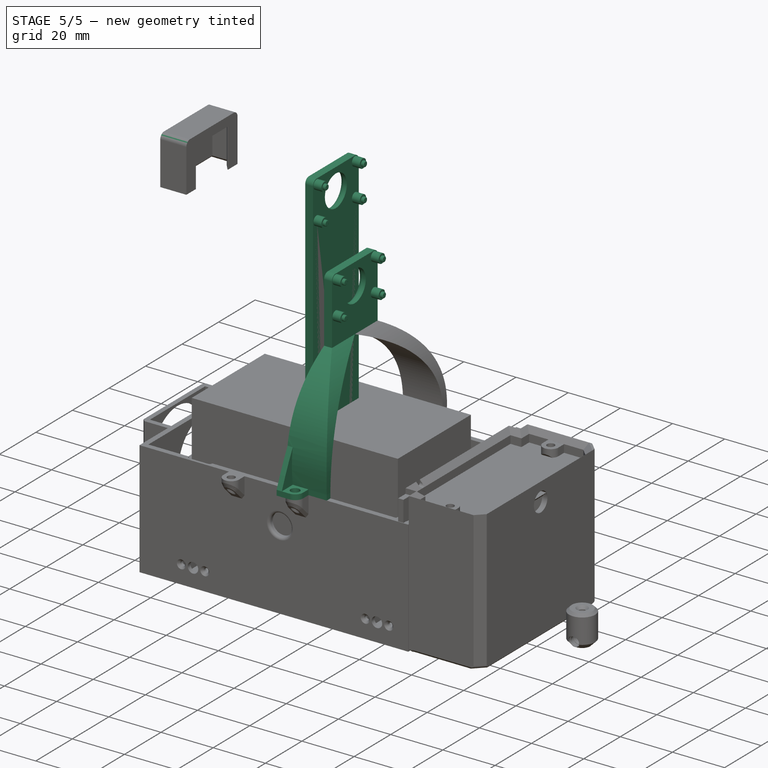
[diagram: stage 5 of 5 — iso view after this stage's code; geometry added in this stage tinted green]
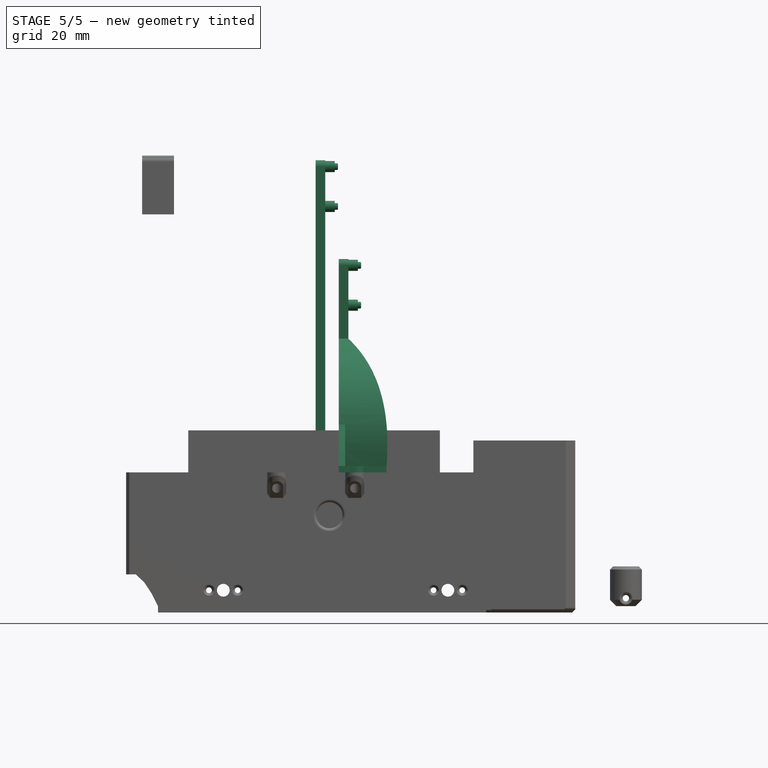
[diagram: stage 5 of 5 — front view after this stage's code; geometry added in this stage tinted green]
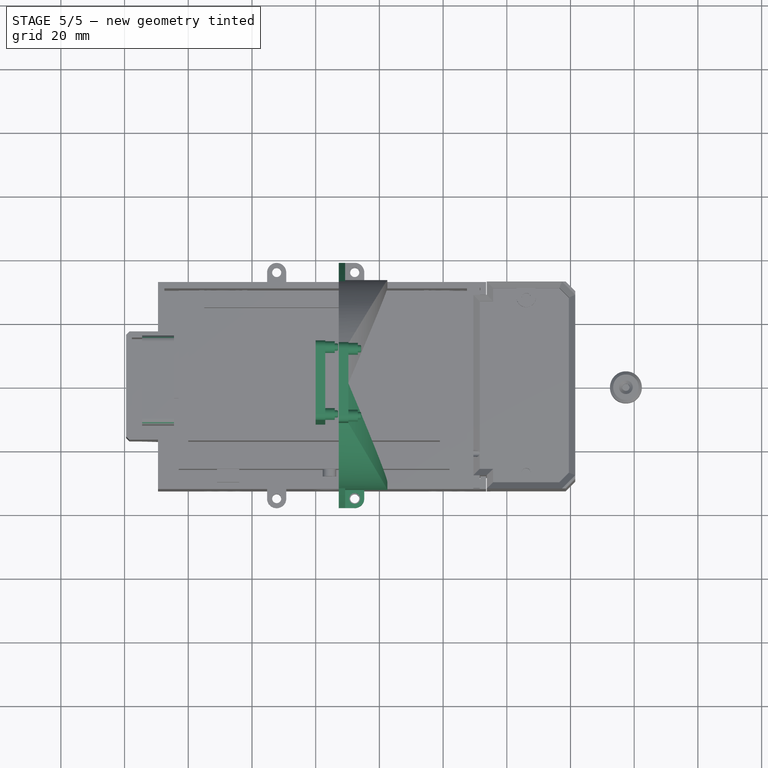
[diagram: stage 5 of 5 — top view after this stage's code; geometry added in this stage tinted green]
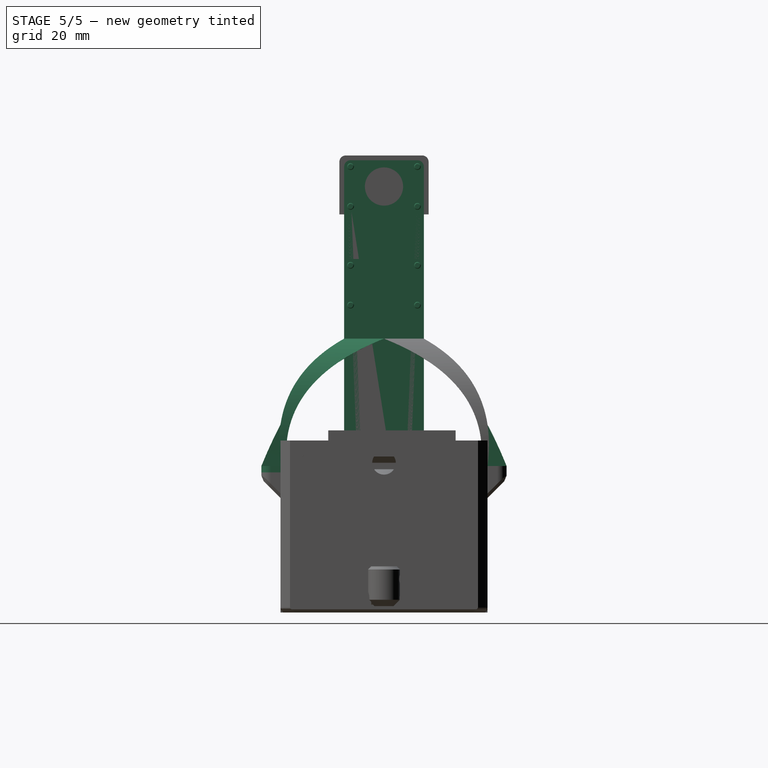
[diagram: stage 5 of 5 — right view after this stage's code; geometry added in this stage tinted green]
FEATURE [Sketcher::SketchObject] Sketch015
  FullyConstrained = true
  MapMode = 5
  Placement = pos=(0,0,0) rot=(0.57735,0.57735,0.57735;2.0944rad)
  Support = -> [YZ_Plane001]
  sketch-geometry (4):
    g0: LineSegment StartX=12.5 StartY=140 StartZ=0 EndX=-12.5 EndY=140 EndZ=0
    g1: LineSegment StartX=-12.5 StartY=140 StartZ=0 EndX=-12.5 EndY=0 EndZ=0
    g2: LineSegment StartX=12.5 StartY=0 StartZ=0 EndX=12.5 EndY=140 EndZ=0
    g3: LineSegment StartX=-12.5 StartY=0 StartZ=0 EndX=12.5 EndY=0 EndZ=0
  constraints (11):
    c: Coincident(g0,g1)
    c: Coincident(g2,g0)
    c: Horizontal(g0)
    c: Vertical(g1)
    c: Vertical(g2)
    c: DistanceY(g1,g1) = 140
    c: DistanceX(g0,g0) = 25
    c: Symmetric(g1,g2,g-1)
    c: Coincident(g3,g1)
    c: Coincident(g3,g2)
    c: Horizontal(g3)
FEATURE [PartDesign::Pad] Pad008
  ClaimChildren = false
  Direction = (1,1,1)
  Fit = 0
  FitJoin = 0
  InnerFit = 0
  InnerFitJoin = 0
  InnerTaperAngle = 0
  InnerTaperAngleRev = 0
  Length = 3
  Length2 = 100
  Linearize = true
  NewSolid = false
  Placement = pos=(0,0,0) rot=(0.57735,0.57735,0.57735;2.0944rad)
  Profile = -> Sketch015
  Suppress = false
  Type = 0
  _ProfileBasedVersion = 1
FEATURE [Sketcher::SketchObject] Sketch016
  FullyConstrained = true
  MapMode = 5
  Placement = pos=(-1e-16,0,0) rot=(0.57735,0.57735,-0.57735;4.18879rad)
  Support = -> [Pad008]
  sketch-geometry (4):
    g0: Circle CenterX=-6.25 CenterY=-6.25 CenterZ=0 NormalX=0 NormalY=0 NormalZ=1 AngleXU=0 Radius=1.75
    g1: Circle CenterX=6.25 CenterY=-6.25 CenterZ=0 NormalX=0 NormalY=0 NormalZ=1 AngleXU=0 Radius=1.75
    g2: Circle CenterX=6.25 CenterY=-18.75 CenterZ=0 NormalX=0 NormalY=0 NormalZ=1 AngleXU=0 Radius=1.75
    g3: Circle CenterX=-6.25 CenterY=-18.75 CenterZ=0 NormalX=0 NormalY=0 NormalZ=1 AngleXU=0 Radius=1.75
  constraints (12):
    c: Horizontal(g1,g0)
    c: Horizontal(g2,g3)
    c: Vertical(g2,g1)
    c: Vertical(g3,g0)
    c: DistanceX(g0,g1) = 12.5
    c: DistanceY(g2,g1) = 12.5
    c: DistanceX(g-1,g1) = 6.25
    c: Diameter(g2) = 3.5
    c: Equal(g2,g3)
    c: Equal(g3,g0)
    c: Equal(g0,g1)
    c: DistanceY(g1,g-1) = 6.25
FEATURE [PartDesign::Pocket] Pocket008
  BaseFeature = -> Pad008
  ClaimChildren = false
  Fit = 0
  FitJoin = 0
  InnerFit = 0
  InnerFitJoin = 0
  InnerTaperAngle = 0
  InnerTaperAngleRev = 0
  Length = 5
  Length2 = 100
  Linearize = true
  NewSolid = false
  Placement = pos=(0,0,0) rot=(0.57735,0.57735,0.57735;2.0944rad)
  Profile = -> Sketch016
  Suppress = false
  Type = 1
  _ProfileBasedVersion = 1
FEATURE [Sketcher::SketchObject] Sketch017
  ExternalGeometry = -> [Pocket008]
  FullyConstrained = true
  MapMode = 5
  Placement = pos=(-1e-16,0,0) rot=(0.57735,0.57735,-0.57735;4.18879rad)
  Support = -> [Pocket008]
  sketch-geometry (4):
    g0: Circle CenterX=-6.25 CenterY=-18.75 CenterZ=0 NormalX=0 NormalY=0 NormalZ=1 AngleXU=0 Radius=3
    g1: Circle CenterX=6.25 CenterY=-18.75 CenterZ=0 NormalX=0 NormalY=0 NormalZ=1 AngleXU=0 Radius=3
    g2: Circle CenterX=6.25 CenterY=-6.25 CenterZ=0 NormalX=0 NormalY=0 NormalZ=1 AngleXU=0 Radius=3
    g3: Circle CenterX=-6.25 CenterY=-6.25 CenterZ=0 NormalX=0 NormalY=0 NormalZ=1 AngleXU=0 Radius=3
  constraints (8):
    c: Coincident(g0,g-4)
    c: Coincident(g1,g-6)
    c: Coincident(g2,g-5)
    c: Coincident(g3,g-3)
    c: Diameter(g1) = 6
    c: Equal(g1,g0)
    c: Equal(g1,g2)
    c: Equal(g1,g3)
FEATURE [PartDesign::Pocket] Pocket009
  BaseFeature = -> Pocket008
  ClaimChildren = false
  Fit = 0
  FitJoin = 0
  InnerFit = 0
  InnerFitJoin = 0
  InnerTaperAngle = 0
  InnerTaperAngleRev = 0
  Length = 1
  Length2 = 100
  Linearize = true
  NewSolid = false
  Placement = pos=(0,0,0) rot=(0.57735,0.57735,0.57735;2.0944rad)
  Profile = -> Sketch017
  Suppress = true
  Type = 0
  _ProfileBasedVersion = 1
FEATURE [Sketcher::SketchObject] Sketch018
  ExternalGeometry = -> [Pocket009]
  FullyConstrained = true
  MapMode = 5
  Placement = pos=(3,-7e-16,7e-16) rot=(0.57735,0.57735,0.57735;2.0944rad)
  Support = -> [Pocket009]
  sketch-geometry (4):
    g0: Circle CenterX=-10.5 CenterY=138 CenterZ=0 NormalX=0 NormalY=0 NormalZ=1 AngleXU=0 Radius=1.75
    g1: Circle CenterX=10.5 CenterY=138 CenterZ=0 NormalX=0 NormalY=0 NormalZ=1 AngleXU=0 Radius=1.75
    g2: Circle CenterX=-10.5 CenterY=125.5 CenterZ=0 NormalX=0 NormalY=0 NormalZ=1 AngleXU=0 Radius=1.75
    g3: Circle CenterX=10.5 CenterY=125.5 CenterZ=0 NormalX=0 NormalY=0 NormalZ=1 AngleXU=0 Radius=1.75
  constraints (12):
    c: Horizontal(g0,g1)
    c: Horizontal(g2,g3)
    c: Vertical(g0,g2)
    c: Vertical(g1,g3)
    c: DistanceY(g2,g0) = 12.5
    c: DistanceX(g0,g1) = 21
    c: Diameter(g1) = 3.5
    c: Equal(g1,g0)
    c: Equal(g1,g2)
    c: Equal(g1,g3)
    c: DistanceX(g-3,g0) = 2
    c: DistanceY(g0,g-3) = 2
FEATURE [PartDesign::Pad] Pad009
  BaseFeature = -> Pocket009
  ClaimChildren = false
  Direction = (1,1,1)
  Fit = 0
  FitJoin = 0
  InnerFit = 0
  InnerFitJoin = 0
  InnerTaperAngle = 0
  InnerTaperAngleRev = 0
  Length = 3
  Length2 = 100
  Linearize = true
  NewSolid = false
  Placement = pos=(0,0,0) rot=(0.57735,0.57735,0.57735;2.0944rad)
  Profile = -> Sketch018
  Suppress = false
  Type = 0
  _ProfileBasedVersion = 1
FEATURE [Sketcher::SketchObject] Sketch019
  ExternalGeometry = -> [Pad009]
  FullyConstrained = true
  MapMode = 5
  Placement = pos=(6,-1.3e-15,1.3e-15) rot=(0.57735,0.57735,0.57735;2.0944rad)
  Support = -> [Pad009]
  sketch-geometry (4):
    g0: Circle CenterX=-10.5 CenterY=138 CenterZ=0 NormalX=0 NormalY=0 NormalZ=1 AngleXU=0 Radius=1.05
    g1: Circle CenterX=-10.5 CenterY=125.5 CenterZ=0 NormalX=0 NormalY=0 NormalZ=1 AngleXU=0 Radius=1.05
    g2: Circle CenterX=10.5 CenterY=125.5 CenterZ=0 NormalX=0 NormalY=0 NormalZ=1 AngleXU=0 Radius=1.05
    g3: Circle CenterX=10.5 CenterY=138 CenterZ=0 NormalX=0 NormalY=0 NormalZ=1 AngleXU=0 Radius=1.05
  constraints (8):
    c: Coincident(g0,g-3)
    c: Coincident(g1,g-5)
    c: Coincident(g2,g-6)
    c: Coincident(g3,g-4)
    c: Diameter(g0) = 2.1
    c: Equal(g0,g3)
    c: Equal(g0,g1)
    c: Equal(g0,g2)
FEATURE [PartDesign::Pad] Pad010
  BaseFeature = -> Pad009
  ClaimChildren = false
  Direction = (1,1,1)
  Fit = 0
  FitJoin = 0
  InnerFit = 0
  InnerFitJoin = 0
  InnerTaperAngle = 0
  InnerTaperAngleRev = 0
  Length = 1
  Length2 = 100
  Linearize = true
  NewSolid = false
  Placement = pos=(0,0,0) rot=(0.57735,0.57735,0.57735;2.0944rad)
  Profile = -> Sketch019
  Suppress = false
  Type = 0
  _ProfileBasedVersion = 1
FEATURE [Sketcher::SketchObject] Sketch023
  FullyConstrained = false
  MapMode = 5
  Placement = pos=(-1e-16,0,0) rot=(0.57735,0.57735,-0.57735;4.18879rad)
  Support = -> [Pad010]
  sketch-geometry (4):
    g0: LineSegment StartX=26.4209 StartY=-119.946 StartZ=0 EndX=-30.1756 EndY=-119.946 EndZ=0
    g1: LineSegment StartX=-30.1756 StartY=-119.946 StartZ=0 EndX=-30.1756 EndY=0 EndZ=0
    g2: LineSegment StartX=-30.1756 StartY=0 StartZ=0 EndX=26.4209 EndY=0 EndZ=0
    g3: LineSegment StartX=26.4209 StartY=0 StartZ=0 EndX=26.4209 EndY=-119.946 EndZ=0
  constraints (9):
    c: Coincident(g0,g1)
    c: Coincident(g1,g2)
    c: Coincident(g2,g3)
    c: Coincident(g3,g0)
    c: Horizontal(g0)
    c: Horizontal(g2)
    c: Vertical(g1)
    c: Vertical(g3)
    c: PointOnObject(g1,g-1)
FEATURE [PartDesign::Pocket] Pocket011  label="testcut_head"
  BaseFeature = -> Pad010
  ClaimChildren = false
  Fit = 0
  FitJoin = 0
  InnerFit = 0
  InnerFitJoin = 0
  InnerTaperAngle = 0
  InnerTaperAngleRev = 0
  Length = 5
  Length2 = 100
  Linearize = true
  NewSolid = false
  Placement = pos=(0,0,0) rot=(0.57735,0.57735,0.57735;2.0944rad)
  Profile = -> Sketch023
  Suppress = true
  Type = 1
  _ProfileBasedVersion = 1
FEATURE [PartDesign::Fillet] Fillet003
  Base = -> Pocket011 [Edge44,Edge42,Edge46,Edge48]
  BaseFeature = -> Pocket011
  NewSolid = false
  Placement = pos=(0,0,0) rot=(0.57735,0.57735,0.57735;2.0944rad)
  Radius = 0.3
  SupportTransform = false
  Suppress = false
FEATURE [Sketcher::SketchObject] Sketch024
  ExternalGeometry = -> [Fillet003]
  FullyConstrained = true
  MapMode = 5
  Placement = pos=(3,-7e-16,7e-16) rot=(0.57735,0.57735,0.57735;2.0944rad)
  Support = -> [Fillet003]
  sketch-geometry (1):
    g0: Circle CenterX=1.016e-13 CenterY=131.75 CenterZ=0 NormalX=0 NormalY=0 NormalZ=1 AngleXU=0 Radius=6
  constraints (2):
    c: Diameter(g0) = 12
    c: Symmetric(g-3,g-4,g0)
FEATURE [PartDesign::Pocket] Pocket012  label="camera_remove_hole"
  BaseFeature = -> Fillet003
  ClaimChildren = false
  Fit = 0
  FitJoin = 0
  InnerFit = 0
  InnerFitJoin = 0
  InnerTaperAngle = 0
  InnerTaperAngleRev = 0
  Length = 5
  Length2 = 100
  Linearize = true
  NewSolid = false
  Placement = pos=(0,0,0) rot=(0.57735,0.57735,0.57735;2.0944rad)
  Profile = -> Sketch024
  Suppress = false
  Type = 1
  _ProfileBasedVersion = 1
FEATURE [PartDesign::Fillet] Fillet004
  Base = -> Pocket012 [Edge21,Edge22]
  BaseFeature = -> Pocket012
  NewSolid = false
  Placement = pos=(0,0,0) rot=(0.57735,0.57735,0.57735;2.0944rad)
  Radius = 2
  SupportTransform = false
  Suppress = false
FEATURE [PartDesign::Fillet] Fillet005
  Base = -> Fillet004 [Edge41]
  BaseFeature = -> Fillet004
  NewSolid = false
  Placement = pos=(0,0,0) rot=(0.57735,0.57735,0.57735;2.0944rad)
  Radius = 2
  SupportTransform = false
  Suppress = false
FEATURE [Spreadsheet::Sheet] Spreadsheet  label="Params"
  PythonMode = false
  cells = A1=wall_width; B1(wall_width)==2mm; A2=hook_height; B2(hook_height)==20mm; A3=hook_diameter; B3(hook_diameter)==6mm; A4=fit_gap; B4(fit_gap)==0.2mm; A5=base_width; B5(base_width)==61mm; A6=base_length; B6(base_length)==95mm; A7=m3_screw_hole_diameter; B7(m3_screw_diameter)==2.85mm; A8=base_height; B8(base_height)==42mm; A9=water_tank_lid_insert_wall_width; B9(water_tank_lid_insert_wall_width)==1.8mm
FEATURE [PartDesign::SubShapeBinder] Import003  label="Import003(Sketch033)"
  BindCopyOnChange = 0
  BindMode = 0
  ClaimChildren = false
  Context = -> Body001 [Import003.Edge6]
  FillStyle = 0
  Fuse = false
  MakeFace = false
  PartialLoad = false
  Relative = true
  Support = -> [Body[Sketch033.]]
  _Version = 7
FEATURE [PartDesign::Body] Body001  label="CameraPole"
  AutoGroupSolids = false
  ExportMode = 0
  Group = -> [Sketch015,Pad008,Sketch016,Pocket008,Sketch017,Pocket009,Sketch018,Pad009,Sketch019,Pad010,Sketch023,Pocket011,Fillet003,Sketch024,Pocket012,Fillet004,Fillet005,Import003]
  Origin = -> Origin001
  Placement = pos=(-53,0,0) rot=(0,0,1;0rad)
  Tip = -> Fillet005
  _ExportChildren = -> [Pad008,Pocket008,Pocket009,Pad009,Pad010,Pocket011,Fillet003,Pocket012,Fillet004,Fillet005,Import003]
  _GroupVersion = 1
FEATURE [Part::SubShapeBinder] Import007  label="Import007(Pad025)"
  BindCopyOnChange = 0
  BindMode = 0
  ClaimChildren = false
  Context = -> Body006 [Import007.]
  FillStyle = 0
  Fuse = false
  MakeFace = false
  PartialLoad = false
  Relative = true
  Support = -> [Body005[Pad025.]]
  _Version = 7
FEATURE [PartDesign::Fillet] Fillet013
  Base = -> Chamfer002 [Edge47,Edge51]
  BaseFeature = -> Chamfer002
  NewSolid = false
  Radius = 1
  SupportTransform = false
  Suppress = false
FEATURE [PartDesign::Fillet] Fillet014
  Base = -> Fillet013 [Edge58,Edge54]
  BaseFeature = -> Fillet013
  NewSolid = false
  Radius = 2
  SupportTransform = false
  Suppress = false
FEATURE [PartDesign::AdditiveLoft] AdditiveLoft001
  BaseFeature = -> AdditiveLoft
  ClaimChildren = false
  Closed = false
  Fit = 0
  FitJoin = 0
  InnerFit = 0
  InnerFitJoin = 2
  NewSolid = false
  Profile = -> Sketch048
  Ruled = false
  Sections = -> [Sketch049,Sketch050]
  Suppress = false
  _ProfileBasedVersion = 1
FEATURE [PartDesign::Pad] Pad032
  BaseFeature = -> AdditiveLoft001
  ClaimChildren = false
  Direction = (1,1,1)
  Fit = 0
  FitJoin = 0
  InnerFit = 0
  InnerFitJoin = 0
  InnerTaperAngle = 0
  InnerTaperAngleRev = 0
  Length = 25
  Length2 = 100
  Linearize = true
  NewSolid = false
  Profile = -> Sketch058
  Suppress = false
  Type = 0
  _ProfileBasedVersion = 1
FEATURE [Sketcher::SketchObject] Sketch059
  ExternalGeometry = -> [Pad032]
  FullyConstrained = true
  MapMode = 5
  Placement = pos=(10.25,0,0) rot=(0.57735,0.57735,0.57735;2.0944rad)
  Support = -> [Pad032]
  sketch-geometry (2):
    g0: Circle CenterX=10.5 CenterY=107 CenterZ=0 NormalX=0 NormalY=0 NormalZ=1 AngleXU=0 Radius=1.75
    g1: Circle CenterX=10.5 CenterY=94.5 CenterZ=0 NormalX=0 NormalY=0 NormalZ=1 AngleXU=0 Radius=1.75
  constraints (6):
    c: Diameter(g0) = 3.5
    c: Equal(g0,g1)
    c: DistanceY(g0,g-3) = 2
    c: Vertical(g0,g1)
    c: DistanceY(g1,g0) = 12.5
    c: DistanceX(g-3,g0) = 10.5
FEATURE [PartDesign::Pad] Pad033
  BaseFeature = -> Pad032
  ClaimChildren = false
  Direction = (1,1,1)
  Fit = 0
  FitJoin = 0
  InnerFit = 0
  InnerFitJoin = 0
  InnerTaperAngle = 0
  InnerTaperAngleRev = 0
  Length = 3
  Length2 = 100
  Linearize = true
  NewSolid = false
  Profile = -> Sketch059
  Suppress = false
  Type = 0
  _ProfileBasedVersion = 1
FEATURE [Sketcher::SketchObject] Sketch060
  ExternalGeometry = -> [Pad033]
  FullyConstrained = true
  MapMode = 5
  Placement = pos=(13.25,0,0) rot=(0.57735,0.57735,0.57735;2.0944rad)
  Support = -> [Pad033]
  sketch-geometry (2):
    g0: Circle CenterX=10.5 CenterY=107 CenterZ=0 NormalX=0 NormalY=0 NormalZ=1 AngleXU=0 Radius=1.05
    g1: Circle CenterX=10.5 CenterY=94.5 CenterZ=0 NormalX=0 NormalY=0 NormalZ=1 AngleXU=0 Radius=1.05
  constraints (4):
    c: Coincident(g0,g-3)
    c: Coincident(g1,g-4)
    c: Diameter(g1) = 2.1
    c: Equal(g0,g1)
FEATURE [PartDesign::Pad] Pad034
  BaseFeature = -> Pad033
  ClaimChildren = false
  Direction = (1,1,1)
  Fit = 0
  FitJoin = 0
  InnerFit = 0
  InnerFitJoin = 0
  InnerTaperAngle = 0
  InnerTaperAngleRev = 0
  Length = 1
  Length2 = 100
  Linearize = true
  NewSolid = false
  Profile = -> Sketch060
  Suppress = false
  Type = 0
  _ProfileBasedVersion = 1
FEATURE [PartDesign::Fillet] Fillet010
  Base = -> Pad034 [Edge67,Edge69]
  BaseFeature = -> Pad034
  NewSolid = false
  Radius = 0.3
  SupportTransform = false
  Suppress = false
FEATURE [PartDesign::Fillet] Fillet011
  Base = -> Fillet010 [Edge16]
  BaseFeature = -> Fillet010
  NewSolid = false
  Radius = 2
  SupportTransform = false
  Suppress = false
FEATURE [Sketcher::SketchObject] Sketch061
  ExternalGeometry = -> [Fillet011]
  FullyConstrained = true
  MapMode = 5
  Placement = pos=(10.25,0,0) rot=(0.57735,0.57735,0.57735;2.0944rad)
  Support = -> [Fillet011]
  sketch-geometry (2):
    g0: GeomPoint [constr] X=10.5 Y=100.75 Z=0
    g1: Circle CenterX=0 CenterY=100.75 CenterZ=0 NormalX=0 NormalY=0 NormalZ=1 AngleXU=0 Radius=6
  constraints (4):
    c: Symmetric(g-3,g-4,g0)
    c: PointOnObject(g1,g-2)
    c: Diameter(g1) = 12
    c: Horizontal(g1,g0)
FEATURE [PartDesign::Pocket] Pocket019
  BaseFeature = -> Fillet011
  ClaimChildren = false
  Fit = 0
  FitJoin = 0
  InnerFit = 0
  InnerFitJoin = 0
  InnerTaperAngle = 0
  InnerTaperAngleRev = 0
  Length = 5
  Length2 = 100
  Linearize = true
  NewSolid = false
  Profile = -> Sketch061
  Suppress = false
  Type = 0
  _ProfileBasedVersion = 1
FEATURE [PartDesign::Fillet] Fillet012
  Base = -> Pocket019 [Edge21,Edge23]
  BaseFeature = -> Pocket019
  NewSolid = false
  Radius = 1.7
  SupportTransform = false
  Suppress = false
FEATURE [PartDesign::Mirrored] Mirrored005
  BaseFeature = -> Fillet012
  CopyShape = false
  MirrorPlane = -> XZ_Plane006
  NewSolid = false
  OriginalSubs = -> [Pad028,AdditiveLoft001,Pad032,Pad033,Pad034,Fillet011,Fillet010,Pocket019,Fillet012,AdditiveLoft]
  Originals = -> [Pad028,AdditiveLoft001,Pad032,Pad033,Pad034,Fillet011,Fillet010,Pocket019,Fillet012,AdditiveLoft]
  ParallelTransform = true
  SubTransform = true
  Suppress = false
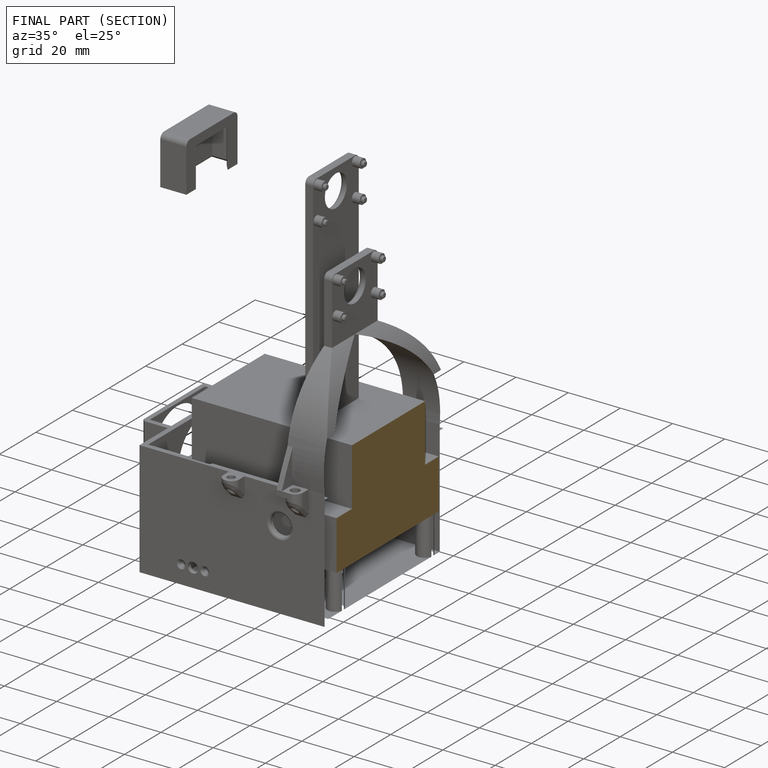
[diagram: finished part — half-section view (interior)]
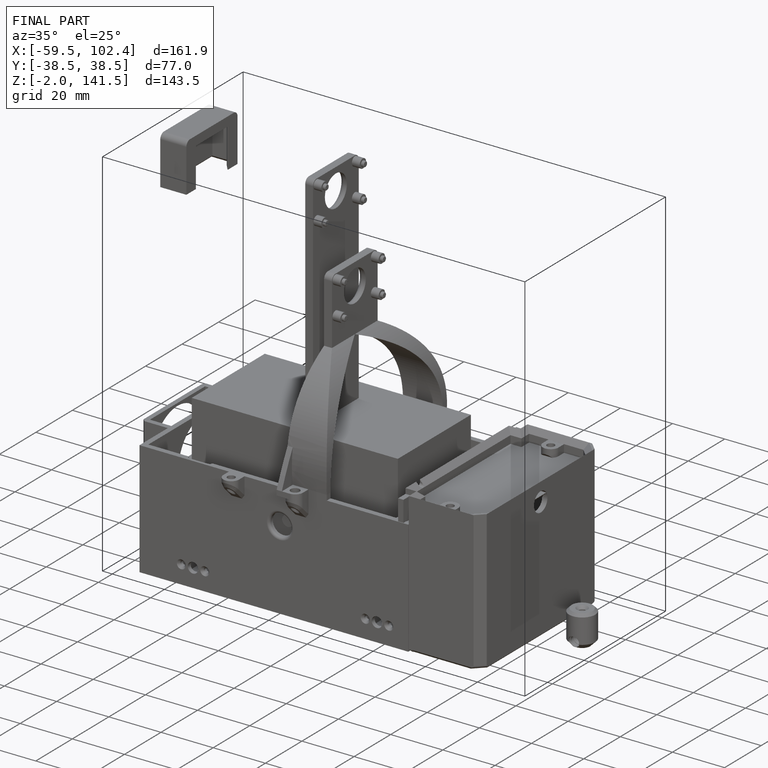
[diagram: finished part — iso view with bounding-box wireframe]
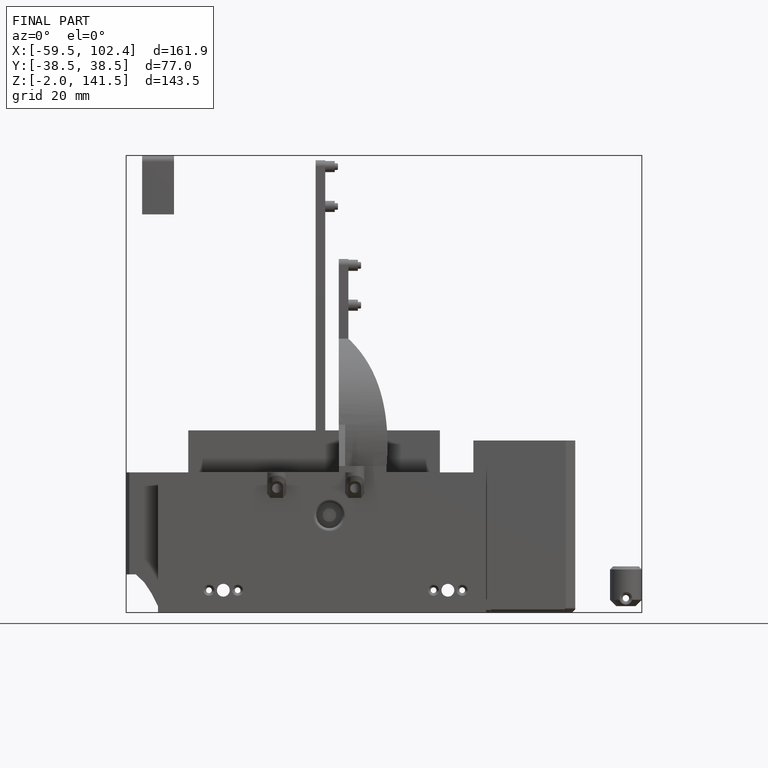
[diagram: finished part — front view with bounding-box wireframe]
